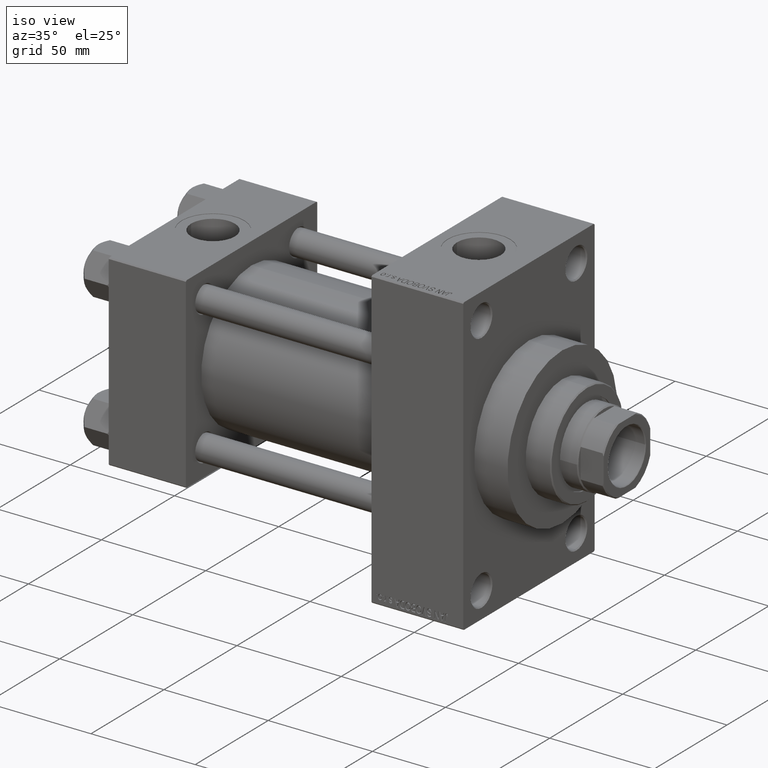
[diagram: clean part render]
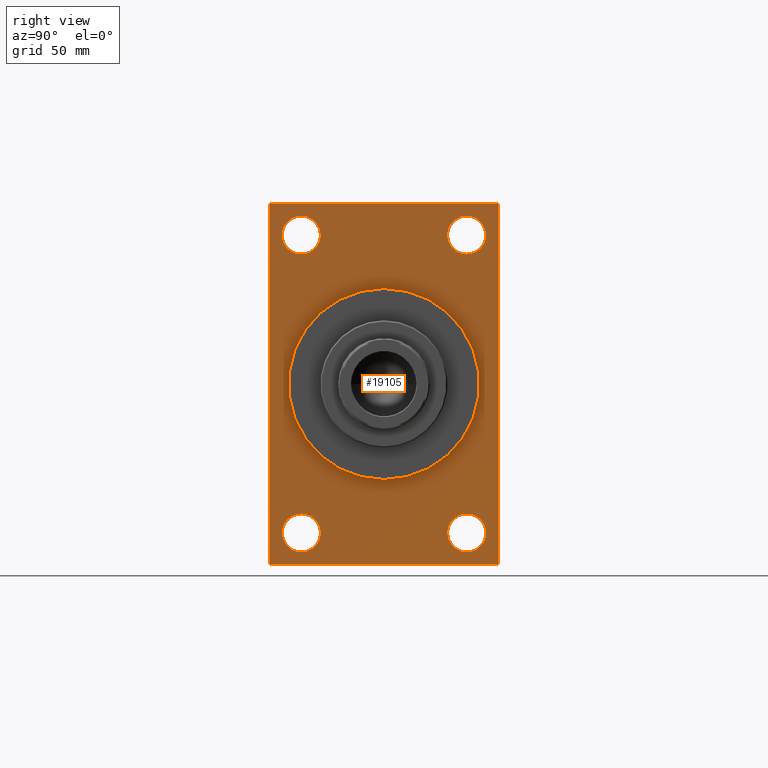
[diagram: tour spotlight — one face highlighted and labeled with its STEP entity id]
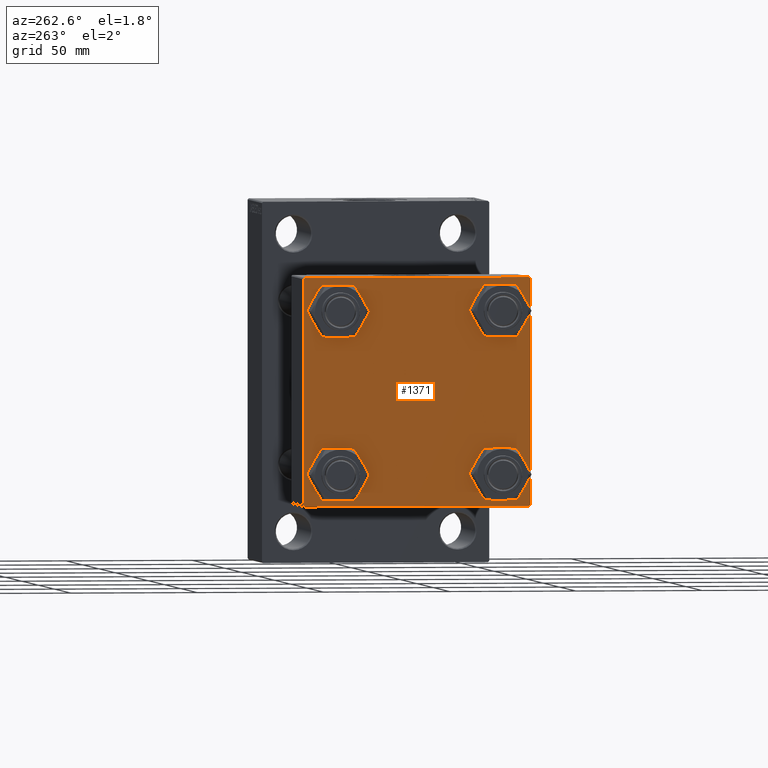
[diagram: tour spotlight — one face highlighted and labeled with its STEP entity id]
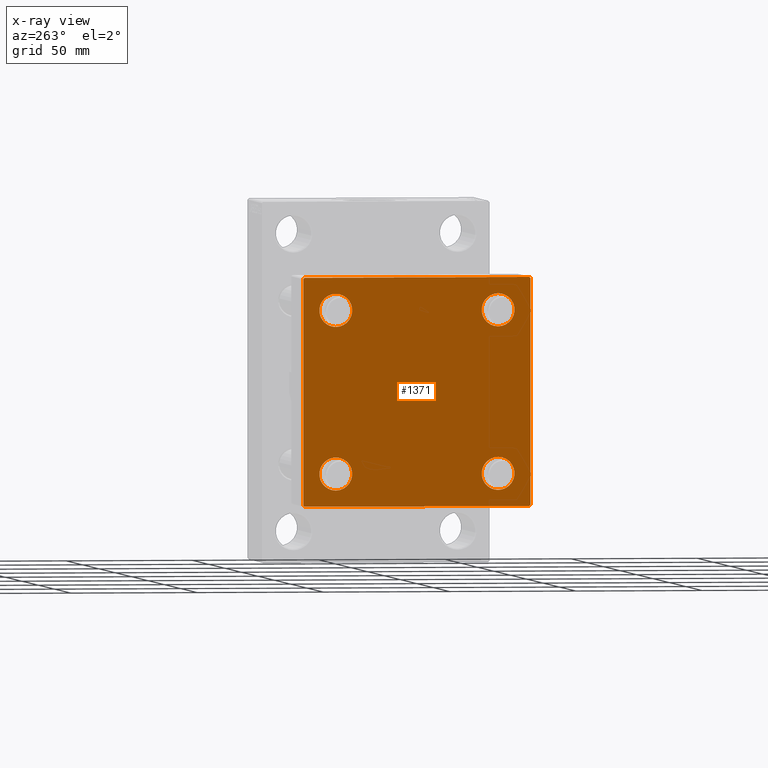
[diagram: x-ray of the same camera — body ghosted, this tour face saturated]
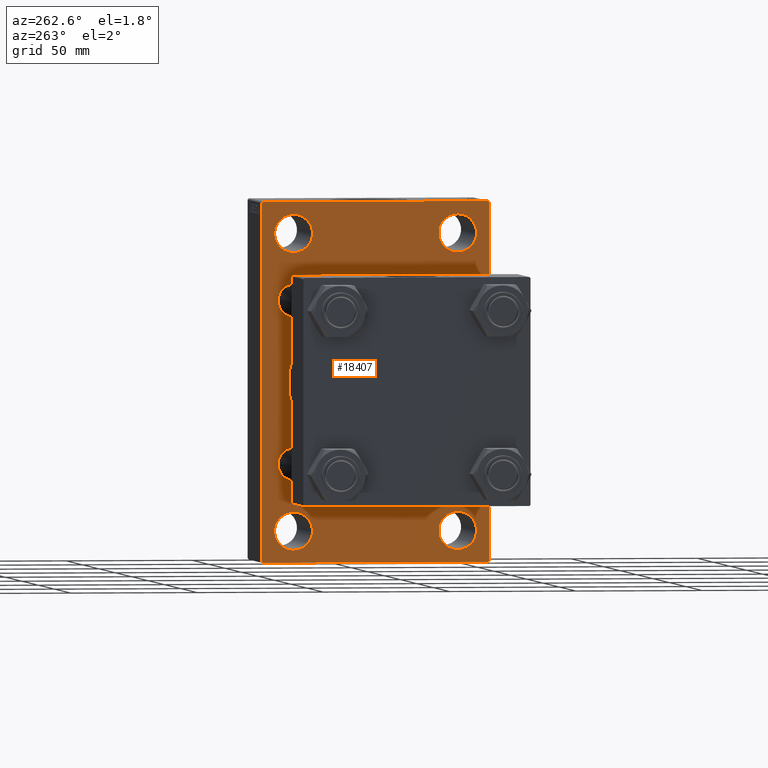
[diagram: tour spotlight — one face highlighted and labeled with its STEP entity id]
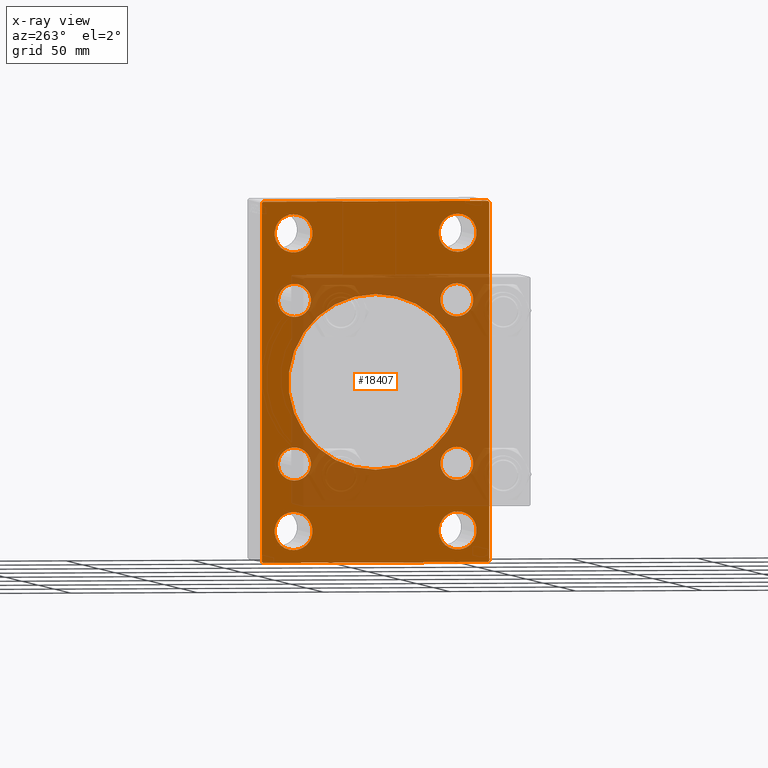
[diagram: x-ray of the same camera — body ghosted, this tour face saturated]
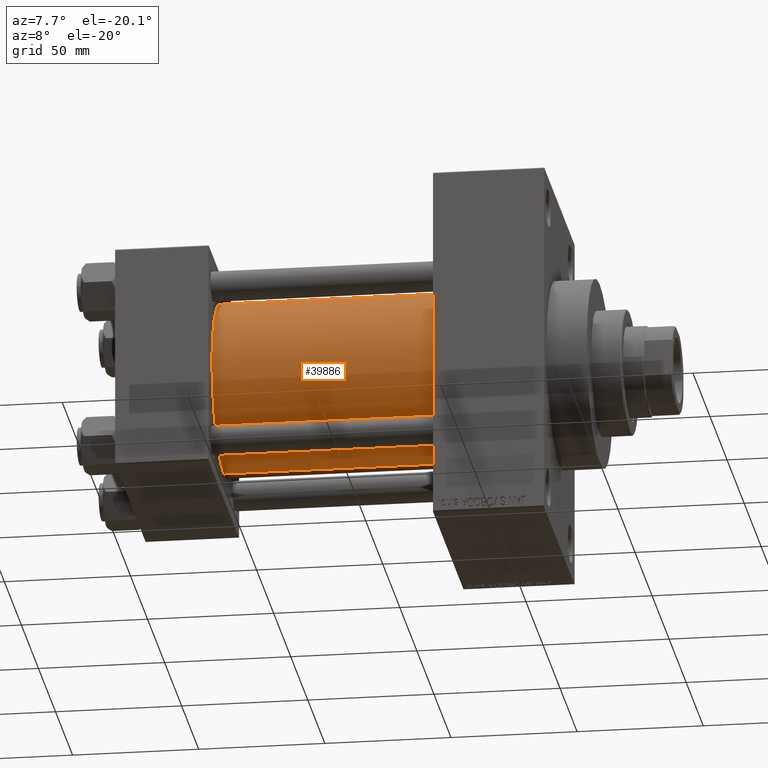
[diagram: tour spotlight — one face highlighted and labeled with its STEP entity id]
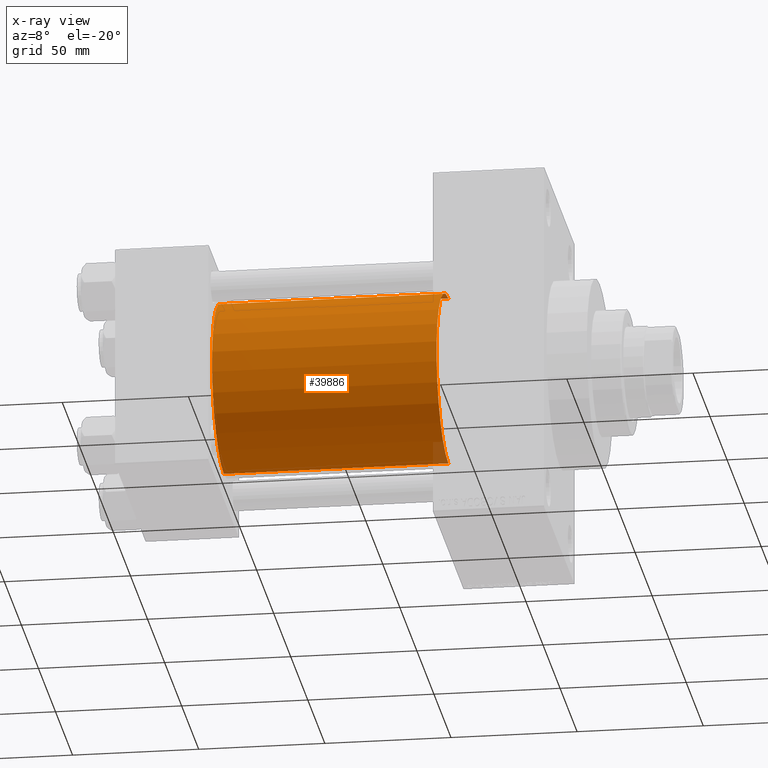
[diagram: x-ray of the same camera — body ghosted, this tour face saturated]
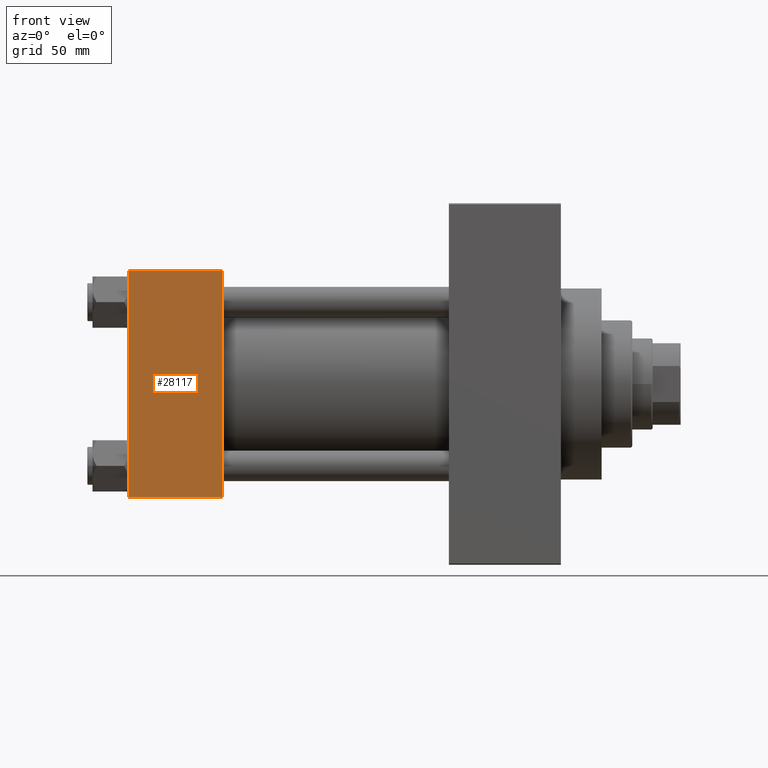
[diagram: tour spotlight — one face highlighted and labeled with its STEP entity id]
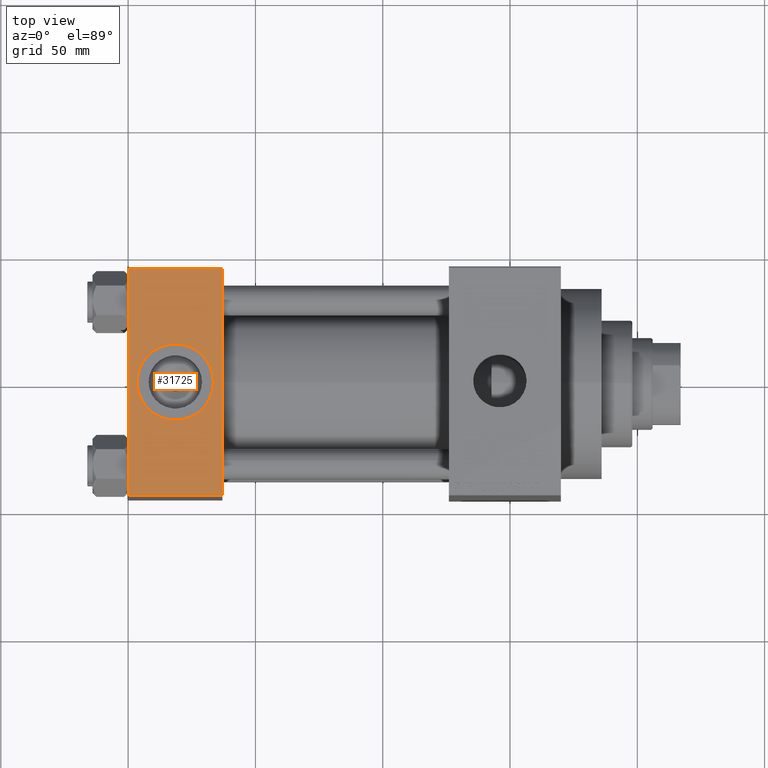
[diagram: tour spotlight — one face highlighted and labeled with its STEP entity id]
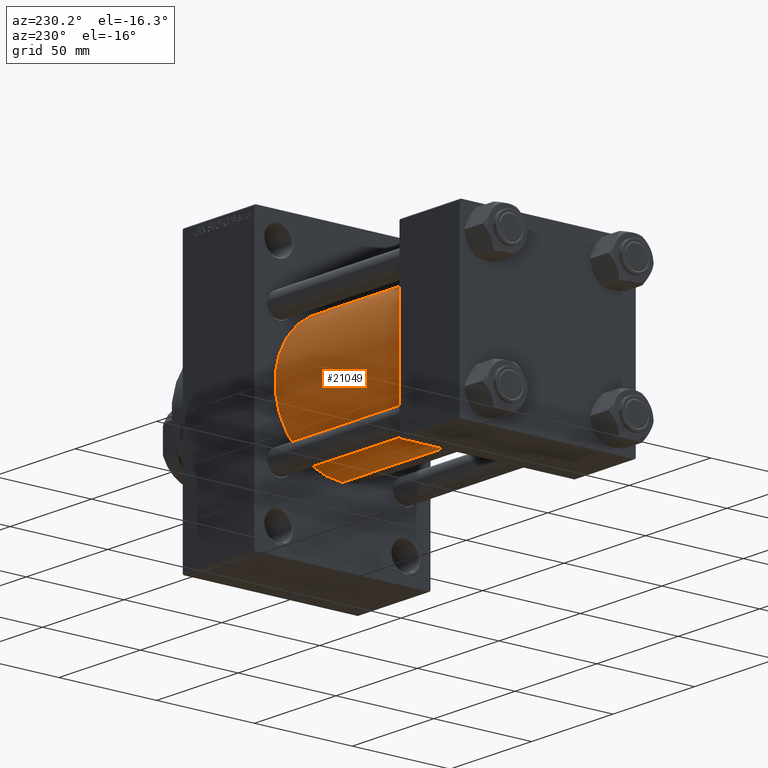
[diagram: tour spotlight — one face highlighted and labeled with its STEP entity id]
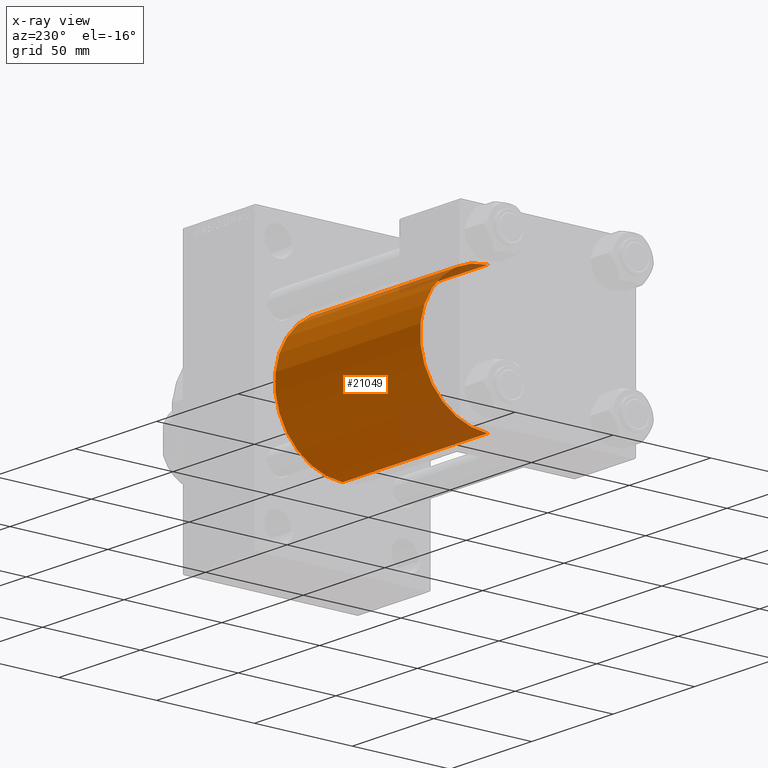
[diagram: x-ray of the same camera — body ghosted, this tour face saturated]
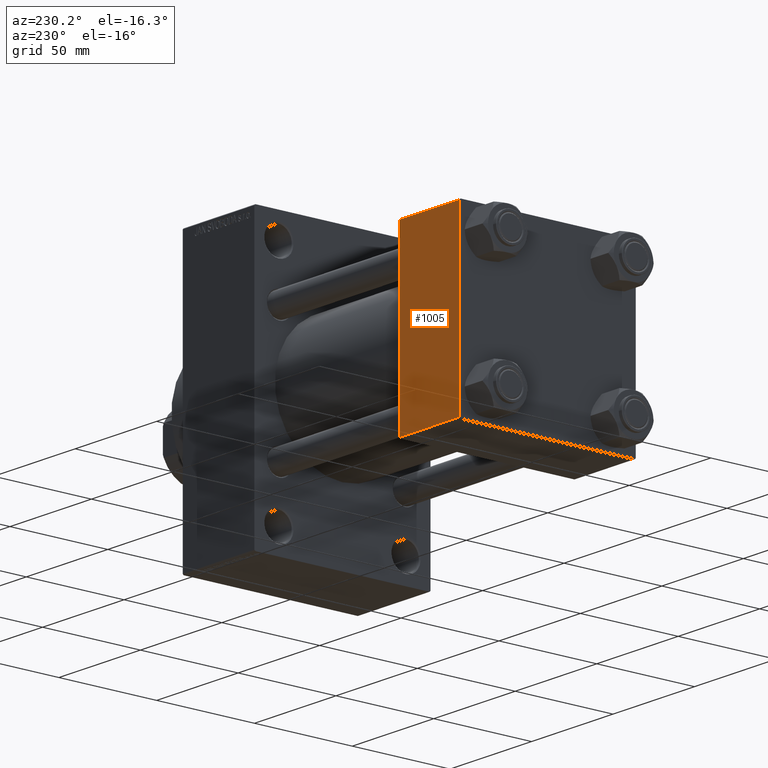
[diagram: tour spotlight — one face highlighted and labeled with its STEP entity id]
A machine part: a face-by-face anatomy tour. The part has 1103 B-rep faces; the first image is the clean iso view, then the 8 largest visible faces are spotlighted one at a time (largest first), each with its STEP entity span.

Face 1 — right view, entity #19105. In plain terms, the highlighted planar face has unit normal (-1, 0, 0).
Definition (entity closure, byte-faithful):
#126 = LINE ( 'NONE', #25207, #31448 ) ;
#303 = VERTEX_POINT ( 'NONE', #4879 ) ;
#905 = EDGE_CURVE ( 'NONE', #6899, #19111, #31951, .T. ) ;
#1536 = DIRECTION ( 'NONE',  ( 0.000000000000000000, 0.7071067811865574537, -0.7071067811865376918 ) ) ;
#1559 = EDGE_CURVE ( 'NONE', #18721, #45373, #23672, .T. ) ;
#1606 = ORIENTED_EDGE ( 'NONE', *, *, #44633, .T. ) ;
#1635 = CARTESIAN_POINT ( 'NONE',  ( 169.9999999999999716, 32.50000000000000711, -58.50000000000000000 ) ) ;
#1670 = VERTEX_POINT ( 'NONE', #16752 ) ;
#1711 = CARTESIAN_POINT ( 'NONE',  ( 169.9999999999999716, -32.50000000000000000, -50.99999999999995737 ) ) ;
#1829 = CIRCLE ( 'NONE', #24711, 37.50000000000000711 ) ;
#1911 = LINE ( 'NONE', #24341, #8340 ) ;
#2215 = DIRECTION ( 'NONE',  ( -0.000000000000000000, 0.000000000000000000, 1.000000000000000000 ) ) ;
#2464 = FACE_BOUND ( 'NONE', #16463, .T. ) ;
#2691 = CARTESIAN_POINT ( 'NONE',  ( 169.9999999999999716, -32.50000000000000000, -66.00000000000001421 ) ) ;
#2987 = AXIS2_PLACEMENT_3D ( 'NONE', #34105, #27207, #15967 ) ;
#3003 = DIRECTION ( 'NONE',  ( 1.000000000000000000, 0.000000000000000000, 0.000000000000000000 ) ) ;
#3280 = VERTEX_POINT ( 'NONE', #31101 ) ;
#3656 = DIRECTION ( 'NONE',  ( 0.000000000000000000, -1.000000000000000000, -1.541976423090495633E-16 ) ) ;
#3835 = CARTESIAN_POINT ( 'NONE',  ( 169.9999999999999716, -44.49999999999992184, 70.99999999999998579 ) ) ;
#4495 = ORIENTED_EDGE ( 'NONE', *, *, #905, .T. ) ;
#4879 = CARTESIAN_POINT ( 'NONE',  ( 169.9999999999999716, 45.00000000000001421, -70.49999999999997158 ) ) ;
#5956 = AXIS2_PLACEMENT_3D ( 'NONE', #32393, #20950, #28815 ) ;
#6706 = CIRCLE ( 'NONE', #5956, 7.500000000000020428 ) ;
#6753 = DIRECTION ( 'NONE',  ( -1.000000000000000000, 0.000000000000000000, -0.000000000000000000 ) ) ;
#6899 = VERTEX_POINT ( 'NONE', #29597 ) ;
#7168 = CARTESIAN_POINT ( 'NONE',  ( 169.9999999999999716, 44.50000000000001421, -70.99999999999998579 ) ) ;
#8340 = VECTOR ( 'NONE', #23629, 1000.000000000000114 ) ;
#8413 = DIRECTION ( 'NONE',  ( 0.000000000000000000, 0.000000000000000000, 1.000000000000000000 ) ) ;
#8540 = CIRCLE ( 'NONE', #25349, 7.500000000000034639 ) ;
#9707 = EDGE_LOOP ( 'NONE', ( #35605, #32080 ) ) ;
#9817 = CARTESIAN_POINT ( 'NONE',  ( 169.9999999999999716, 44.50000000000002132, 71.00000000000000000 ) ) ;
#9930 = CARTESIAN_POINT ( 'NONE',  ( 169.9999999999999716, -32.50000000000000000, 58.50000000000000711 ) ) ;
#10110 = CARTESIAN_POINT ( 'NONE',  ( 169.9999999999999716, 0.000000000000000000, 0.000000000000000000 ) ) ;
#10195 = EDGE_CURVE ( 'NONE', #32495, #20672, #31169, .T. ) ;
#10220 = DIRECTION ( 'NONE',  ( -1.000000000000000000, 0.000000000000000000, -0.000000000000000000 ) ) ;
#10445 = CARTESIAN_POINT ( 'NONE',  ( 169.9999999999999716, 44.50000000000002132, 71.00000000000000000 ) ) ;
#10601 = AXIS2_PLACEMENT_3D ( 'NONE', #44114, #25983, #22402 ) ;
#10828 = DIRECTION ( 'NONE',  ( 0.000000000000000000, 0.000000000000000000, 1.000000000000000000 ) ) ;
#12341 = CARTESIAN_POINT ( 'NONE',  ( 169.9999999999999716, 4.592425496802575156E-15, -37.50000000000000711 ) ) ;
#13217 = CARTESIAN_POINT ( 'NONE',  ( 169.9999999999999716, -32.50000000000000000, 50.99999999999999289 ) ) ;
#13323 = ORIENTED_EDGE ( 'NONE', *, *, #36666, .T. ) ;
#13558 = DIRECTION ( 'NONE',  ( 0.000000000000000000, 0.000000000000000000, 1.000000000000000000 ) ) ;
#13930 = ORIENTED_EDGE ( 'NONE', *, *, #39283, .T. ) ;
#14369 = ORIENTED_EDGE ( 'NONE', *, *, #44722, .F. ) ;
#14616 = AXIS2_PLACEMENT_3D ( 'NONE', #9930, #20423, #17798 ) ;
#15168 = VECTOR ( 'NONE', #3656, 1000.000000000000000 ) ;
#15967 = DIRECTION ( 'NONE',  ( 0.000000000000000000, 0.000000000000000000, 1.000000000000000000 ) ) ;
#16217 = CIRCLE ( 'NONE', #38337, 7.500000000000034639 ) ;
#16463 = EDGE_LOOP ( 'NONE', ( #37931, #39090 ) ) ;
#16482 = ORIENTED_EDGE ( 'NONE', *, *, #33131, .T. ) ;
#16637 = CARTESIAN_POINT ( 'NONE',  ( 169.9999999999999716, 0.000000000000000000, 0.000000000000000000 ) ) ;
#16752 = CARTESIAN_POINT ( 'NONE',  ( 169.9999999999999716, 32.50000000000000711, -50.99999999999996447 ) ) ;
#16865 = VERTEX_POINT ( 'NONE', #18259 ) ;
#17032 = FACE_BOUND ( 'NONE', #27180, .T. ) ;
#17223 = EDGE_CURVE ( 'NONE', #20672, #32495, #46653, .T. ) ;
#17243 = VERTEX_POINT ( 'NONE', #32309 ) ;
#17291 = LINE ( 'NONE', #24927, #15168 ) ;
#17503 = EDGE_LOOP ( 'NONE', ( #1606, #13930, #46648, #26692, #41334, #37657, #18661, #13323 ) ) ;
#17777 = EDGE_CURVE ( 'NONE', #42983, #303, #126, .T. ) ;
#17798 = DIRECTION ( 'NONE',  ( 0.000000000000000000, 0.000000000000000000, 1.000000000000000000 ) ) ;
#17888 = VECTOR ( 'NONE', #24698, 1000.000000000000000 ) ;
#17982 = CARTESIAN_POINT ( 'NONE',  ( 169.9999999999999716, -32.50000000000000000, -58.49999999999999289 ) ) ;
#18259 = CARTESIAN_POINT ( 'NONE',  ( 169.9999999999999716, 32.50000000000000711, 66.00000000000002842 ) ) ;
#18661 = ORIENTED_EDGE ( 'NONE', *, *, #1559, .T. ) ;
#18690 = EDGE_CURVE ( 'NONE', #29862, #1670, #16217, .T. ) ;
#18721 = VERTEX_POINT ( 'NONE', #10445 ) ;
#19105 = ADVANCED_FACE ( 'NONE', ( #31813, #35166, #2464, #17032, #27295, #46363 ), #42096, .F. ) ;
#19111 = VERTEX_POINT ( 'NONE', #13217 ) ;
#19161 = CARTESIAN_POINT ( 'NONE',  ( 169.9999999999999716, 32.50000000000000711, 58.50000000000000711 ) ) ;
#19574 = EDGE_CURVE ( 'NONE', #19111, #6899, #22247, .T. ) ;
#20024 = DIRECTION ( 'NONE',  ( 0.000000000000000000, 0.000000000000000000, 1.000000000000000000 ) ) ;
#20423 = DIRECTION ( 'NONE',  ( -1.000000000000000000, 0.000000000000000000, -0.000000000000000000 ) ) ;
#20672 = VERTEX_POINT ( 'NONE', #1711 ) ;
#20950 = DIRECTION ( 'NONE',  ( -1.000000000000000000, 0.000000000000000000, -0.000000000000000000 ) ) ;
#21308 = EDGE_CURVE ( 'NONE', #1670, #29862, #8540, .T. ) ;
#22170 = EDGE_CURVE ( 'NONE', #3280, #18721, #24140, .T. ) ;
#22247 = CIRCLE ( 'NONE', #14616, 7.500000000000020428 ) ;
#22402 = DIRECTION ( 'NONE',  ( 0.000000000000000000, 0.000000000000000000, 1.000000000000000000 ) ) ;
#22737 = VERTEX_POINT ( 'NONE', #31180 ) ;
#22996 = CIRCLE ( 'NONE', #38232, 37.50000000000000711 ) ;
#23030 = AXIS2_PLACEMENT_3D ( 'NONE', #17982, #6753, #10828 ) ;
#23282 = CARTESIAN_POINT ( 'NONE',  ( 169.9999999999999716, 32.50000000000000711, 50.99999999999999289 ) ) ;
#23629 = DIRECTION ( 'NONE',  ( -0.000000000000000000, -0.7071067811865425767, -0.7071067811865524577 ) ) ;
#23672 = LINE ( 'NONE', #41589, #31228 ) ;
#23922 = VERTEX_POINT ( 'NONE', #27897 ) ;
#24140 = LINE ( 'NONE', #9817, #39876 ) ;
#24341 = CARTESIAN_POINT ( 'NONE',  ( 169.9999999999999716, -44.99999999999997158, 70.49999999999995737 ) ) ;
#24413 = ORIENTED_EDGE ( 'NONE', *, *, #25195, .F. ) ;
#24698 = DIRECTION ( 'NONE',  ( 0.000000000000000000, -4.886545002751570165E-17, -1.000000000000000000 ) ) ;
#24711 = AXIS2_PLACEMENT_3D ( 'NONE', #28785, #3003, #27851 ) ;
#24927 = CARTESIAN_POINT ( 'NONE',  ( 169.9999999999999716, 45.00000000000001421, -70.99999999999998579 ) ) ;
#25195 = EDGE_CURVE ( 'NONE', #23922, #43323, #1829, .T. ) ;
#25207 = CARTESIAN_POINT ( 'NONE',  ( 169.9999999999999716, 45.00000000000001421, -70.49999999999997158 ) ) ;
#25349 = AXIS2_PLACEMENT_3D ( 'NONE', #1635, #30990, #20024 ) ;
#25983 = DIRECTION ( 'NONE',  ( -1.000000000000000000, 0.000000000000000000, -0.000000000000000000 ) ) ;
#26343 = EDGE_CURVE ( 'NONE', #3280, #303, #32319, .T. ) ;
#26676 = DIRECTION ( 'NONE',  ( 0.000000000000000000, 0.000000000000000000, -1.000000000000000000 ) ) ;
#26692 = ORIENTED_EDGE ( 'NONE', *, *, #17777, .T. ) ;
#27106 = CARTESIAN_POINT ( 'NONE',  ( 169.9999999999999716, -44.49999999999994316, -71.00000000000000000 ) ) ;
#27180 = EDGE_LOOP ( 'NONE', ( #16482, #46790 ) ) ;
#27207 = DIRECTION ( 'NONE',  ( -1.000000000000000000, 0.000000000000000000, -0.000000000000000000 ) ) ;
#27295 = FACE_BOUND ( 'NONE', #28349, .T. ) ;
#27494 = DIRECTION ( 'NONE',  ( 0.000000000000000000, -0.7071067811865474617, 0.7071067811865474617 ) ) ;
#27851 = DIRECTION ( 'NONE',  ( 0.000000000000000000, 0.000000000000000000, -1.000000000000000000 ) ) ;
#27897 = CARTESIAN_POINT ( 'NONE',  ( 169.9999999999999716, 0.000000000000000000, 37.50000000000000711 ) ) ;
#28349 = EDGE_LOOP ( 'NONE', ( #24413, #14369 ) ) ;
#28785 = CARTESIAN_POINT ( 'NONE',  ( 169.9999999999999716, 0.000000000000000000, 0.000000000000000000 ) ) ;
#28815 = DIRECTION ( 'NONE',  ( 0.000000000000000000, 0.000000000000000000, 1.000000000000000000 ) ) ;
#29112 = CIRCLE ( 'NONE', #44325, 7.500000000000020428 ) ;
#29215 = CARTESIAN_POINT ( 'NONE',  ( 169.9999999999999716, 32.50000000000000711, -66.00000000000002842 ) ) ;
#29597 = CARTESIAN_POINT ( 'NONE',  ( 169.9999999999999716, -32.50000000000000000, 66.00000000000002842 ) ) ;
#29793 = VECTOR ( 'NONE', #1536, 999.9999999999998863 ) ;
#29862 = VERTEX_POINT ( 'NONE', #29215 ) ;
#30031 = CARTESIAN_POINT ( 'NONE',  ( 169.9999999999999716, -44.99999999999997158, 70.99999999999998579 ) ) ;
#30990 = DIRECTION ( 'NONE',  ( -1.000000000000000000, 0.000000000000000000, -0.000000000000000000 ) ) ;
#31101 = CARTESIAN_POINT ( 'NONE',  ( 169.9999999999999716, 45.00000000000002132, 70.50000000000000000 ) ) ;
#31169 = CIRCLE ( 'NONE', #10601, 7.500000000000041744 ) ;
#31180 = CARTESIAN_POINT ( 'NONE',  ( 169.9999999999999716, -44.49999999999991473, -71.00000000000000000 ) ) ;
#31191 = DIRECTION ( 'NONE',  ( 1.000000000000000000, 0.000000000000000000, 0.000000000000000000 ) ) ;
#31228 = VECTOR ( 'NONE', #41110, 1000.000000000000000 ) ;
#31341 = DIRECTION ( 'NONE',  ( -1.000000000000000000, 0.000000000000000000, -0.000000000000000000 ) ) ;
#31448 = VECTOR ( 'NONE', #40484, 999.9999999999998863 ) ;
#31696 = CARTESIAN_POINT ( 'NONE',  ( 169.9999999999999716, 32.50000000000000711, -58.50000000000000000 ) ) ;
#31813 = FACE_BOUND ( 'NONE', #31969, .T. ) ;
#31951 = CIRCLE ( 'NONE', #2987, 7.500000000000020428 ) ;
#31969 = EDGE_LOOP ( 'NONE', ( #39404, #4495 ) ) ;
#32050 = VERTEX_POINT ( 'NONE', #23282 ) ;
#32080 = ORIENTED_EDGE ( 'NONE', *, *, #17223, .T. ) ;
#32140 = DIRECTION ( 'NONE',  ( 0.000000000000000000, 0.000000000000000000, -1.000000000000000000 ) ) ;
#32309 = CARTESIAN_POINT ( 'NONE',  ( 169.9999999999999716, -44.99999999999997158, -70.49999999999998579 ) ) ;
#32319 = LINE ( 'NONE', #42831, #17888 ) ;
#32393 = CARTESIAN_POINT ( 'NONE',  ( 169.9999999999999716, 32.50000000000000711, 58.50000000000000711 ) ) ;
#32495 = VERTEX_POINT ( 'NONE', #2691 ) ;
#33131 = EDGE_CURVE ( 'NONE', #32050, #16865, #6706, .T. ) ;
#34105 = CARTESIAN_POINT ( 'NONE',  ( 169.9999999999999716, -32.50000000000000000, 58.50000000000000711 ) ) ;
#35166 = FACE_BOUND ( 'NONE', #9707, .T. ) ;
#35192 = EDGE_CURVE ( 'NONE', #42983, #22737, #17291, .T. ) ;
#35605 = ORIENTED_EDGE ( 'NONE', *, *, #10195, .T. ) ;
#36666 = EDGE_CURVE ( 'NONE', #45373, #41788, #1911, .T. ) ;
#37413 = LINE ( 'NONE', #30031, #37436 ) ;
#37436 = VECTOR ( 'NONE', #26676, 1000.000000000000000 ) ;
#37657 = ORIENTED_EDGE ( 'NONE', *, *, #22170, .T. ) ;
#37931 = ORIENTED_EDGE ( 'NONE', *, *, #18690, .T. ) ;
#38232 = AXIS2_PLACEMENT_3D ( 'NONE', #16637, #31191, #32140 ) ;
#38337 = AXIS2_PLACEMENT_3D ( 'NONE', #31696, #10220, #13558 ) ;
#38989 = CARTESIAN_POINT ( 'NONE',  ( 169.9999999999999716, -44.99999999999997158, 70.49999999999995737 ) ) ;
#39090 = ORIENTED_EDGE ( 'NONE', *, *, #21308, .T. ) ;
#39283 = EDGE_CURVE ( 'NONE', #17243, #22737, #45464, .T. ) ;
#39404 = ORIENTED_EDGE ( 'NONE', *, *, #19574, .T. ) ;
#39876 = VECTOR ( 'NONE', #27494, 1000.000000000000114 ) ;
#40484 = DIRECTION ( 'NONE',  ( -0.000000000000000000, 0.7071067811865376918, 0.7071067811865574537 ) ) ;
#41110 = DIRECTION ( 'NONE',  ( 0.000000000000000000, -1.000000000000000000, -1.541976423090495387E-16 ) ) ;
#41334 = ORIENTED_EDGE ( 'NONE', *, *, #26343, .F. ) ;
#41364 = DIRECTION ( 'NONE',  ( -1.000000000000000000, 0.000000000000000000, -0.000000000000000000 ) ) ;
#41589 = CARTESIAN_POINT ( 'NONE',  ( 169.9999999999999716, 45.00000000000002132, 71.00000000000000000 ) ) ;
#41788 = VERTEX_POINT ( 'NONE', #38989 ) ;
#42049 = AXIS2_PLACEMENT_3D ( 'NONE', #10110, #31341, #2215 ) ;
#42096 = PLANE ( 'NONE',  #42049 ) ;
#42831 = CARTESIAN_POINT ( 'NONE',  ( 169.9999999999999716, 45.00000000000002132, 71.00000000000000000 ) ) ;
#42983 = VERTEX_POINT ( 'NONE', #7168 ) ;
#43323 = VERTEX_POINT ( 'NONE', #12341 ) ;
#44114 = CARTESIAN_POINT ( 'NONE',  ( 169.9999999999999716, -32.50000000000000000, -58.49999999999999289 ) ) ;
#44325 = AXIS2_PLACEMENT_3D ( 'NONE', #19161, #41364, #8413 ) ;
#44633 = EDGE_CURVE ( 'NONE', #41788, #17243, #37413, .T. ) ;
#44722 = EDGE_CURVE ( 'NONE', #43323, #23922, #22996, .T. ) ;
#45233 = EDGE_CURVE ( 'NONE', #16865, #32050, #29112, .T. ) ;
#45373 = VERTEX_POINT ( 'NONE', #3835 ) ;
#45464 = LINE ( 'NONE', #27106, #29793 ) ;
#46363 = FACE_OUTER_BOUND ( 'NONE', #17503, .T. ) ;
#46648 = ORIENTED_EDGE ( 'NONE', *, *, #35192, .F. ) ;
#46653 = CIRCLE ( 'NONE', #23030, 7.500000000000041744 ) ;
#46790 = ORIENTED_EDGE ( 'NONE', *, *, #45233, .T. ) ;

Face 2 — auxiliary view, entity #1371. An x-ray twin of the same camera follows (body ghosted, this face saturated) — the face is partly hidden behind the body. In plain terms, the highlighted planar face has unit normal (-1, 0, 0).
Definition (entity closure, byte-faithful):
#591 = DIRECTION ( 'NONE',  ( 1.000000000000000000, -0.000000000000000000, 0.000000000000000000 ) ) ;
#765 = FACE_BOUND ( 'NONE', #19813, .T. ) ;
#851 = VERTEX_POINT ( 'NONE', #22442 ) ;
#1371 = ADVANCED_FACE ( 'NONE', ( #36365, #28967, #29671, #765, #32765 ), #7240, .T. ) ;
#1478 = ORIENTED_EDGE ( 'NONE', *, *, #7666, .T. ) ;
#1924 = EDGE_CURVE ( 'NONE', #19772, #40268, #35278, .T. ) ;
#2082 = CARTESIAN_POINT ( 'NONE',  ( 0.000000000000000000, 32.14999999999999147, 25.65000000000002700 ) ) ;
#2303 = EDGE_CURVE ( 'NONE', #42509, #37448, #26701, .T. ) ;
#2572 = CARTESIAN_POINT ( 'NONE',  ( 0.000000000000000000, 44.99999999999998579, 45.00000000000001421 ) ) ;
#3625 = CARTESIAN_POINT ( 'NONE',  ( 0.000000000000000000, -45.00000000000000711, 44.49999999999997158 ) ) ;
#3650 = DIRECTION ( 'NONE',  ( -1.000000000000000000, 0.000000000000000000, -0.000000000000000000 ) ) ;
#3675 = VERTEX_POINT ( 'NONE', #40105 ) ;
#3918 = DIRECTION ( 'NONE',  ( 1.000000000000000000, -0.000000000000000000, 0.000000000000000000 ) ) ;
#4135 = DIRECTION ( 'NONE',  ( -0.000000000000000000, 0.000000000000000000, 1.000000000000000000 ) ) ;
#4552 = DIRECTION ( 'NONE',  ( 1.000000000000000000, -0.000000000000000000, 0.000000000000000000 ) ) ;
#5040 = CARTESIAN_POINT ( 'NONE',  ( -0.000000000000000000, -44.75000000000029843, 44.74999999999967315 ) ) ;
#5562 = ORIENTED_EDGE ( 'NONE', *, *, #18236, .T. ) ;
#6135 = DIRECTION ( 'NONE',  ( 0.000000000000000000, -1.000000000000000000, -1.541976423090495387E-16 ) ) ;
#6761 = CARTESIAN_POINT ( 'NONE',  ( 0.000000000000000000, -32.14999999999997726, 32.15000000000001279 ) ) ;
#6777 = VECTOR ( 'NONE', #16857, 1000.000000000000000 ) ;
#6878 = VECTOR ( 'NONE', #37793, 1000.000000000000114 ) ;
#7240 = PLANE ( 'NONE',  #12939 ) ;
#7454 = AXIS2_PLACEMENT_3D ( 'NONE', #6761, #25624, #30599 ) ;
#7666 = EDGE_CURVE ( 'NONE', #20897, #40268, #12683, .T. ) ;
#8238 = AXIS2_PLACEMENT_3D ( 'NONE', #45128, #4552, #23177 ) ;
#8582 = AXIS2_PLACEMENT_3D ( 'NONE', #29497, #591, #18268 ) ;
#9788 = CIRCLE ( 'NONE', #21201, 6.499999999999977796 ) ;
#9913 = VECTOR ( 'NONE', #6135, 1000.000000000000000 ) ;
#10146 = CARTESIAN_POINT ( 'NONE',  ( 0.000000000000000000, -32.14999999999997726, 38.65000000000003411 ) ) ;
#10274 = CARTESIAN_POINT ( 'NONE',  ( 0.000000000000000000, 32.14999999999999147, -38.64999999999998437 ) ) ;
#10681 = VERTEX_POINT ( 'NONE', #10146 ) ;
#11092 = EDGE_CURVE ( 'NONE', #37448, #42509, #35783, .T. ) ;
#11720 = ORIENTED_EDGE ( 'NONE', *, *, #41746, .F. ) ;
#12321 = EDGE_CURVE ( 'NONE', #39337, #21309, #22806, .T. ) ;
#12683 = LINE ( 'NONE', #5040, #19233 ) ;
#12712 = VERTEX_POINT ( 'NONE', #10274 ) ;
#12768 = CARTESIAN_POINT ( 'NONE',  ( 0.000000000000000000, 44.99999999999998579, -44.49999999999995737 ) ) ;
#12939 = AXIS2_PLACEMENT_3D ( 'NONE', #43526, #3650, #4135 ) ;
#13284 = LINE ( 'NONE', #35243, #6777 ) ;
#14150 = CARTESIAN_POINT ( 'NONE',  ( 0.000000000000000000, -45.00000000000000711, 45.00000000000000000 ) ) ;
#14372 = DIRECTION ( 'NONE',  ( 0.000000000000000000, 7.709882115452476934E-17, -1.000000000000000000 ) ) ;
#15194 = AXIS2_PLACEMENT_3D ( 'NONE', #33416, #36535, #44406 ) ;
#16111 = DIRECTION ( 'NONE',  ( 1.000000000000000000, -0.000000000000000000, 0.000000000000000000 ) ) ;
#16179 = VECTOR ( 'NONE', #22732, 1000.000000000000114 ) ;
#16469 = ORIENTED_EDGE ( 'NONE', *, *, #32578, .T. ) ;
#16857 = DIRECTION ( 'NONE',  ( 0.000000000000000000, -1.000000000000000000, -1.541976423090495633E-16 ) ) ;
#17034 = LINE ( 'NONE', #14150, #27467 ) ;
#17873 = EDGE_CURVE ( 'NONE', #45380, #36868, #33725, .T. ) ;
#18236 = EDGE_CURVE ( 'NONE', #19772, #39947, #44462, .T. ) ;
#18268 = DIRECTION ( 'NONE',  ( 0.000000000000000000, 0.000000000000000000, 1.000000000000000000 ) ) ;
#18402 = CARTESIAN_POINT ( 'NONE',  ( 0.000000000000000000, 32.14999999999999147, 38.64999999999999147 ) ) ;
#18655 = VERTEX_POINT ( 'NONE', #31459 ) ;
#19130 = DIRECTION ( 'NONE',  ( -0.000000000000000000, 0.7071067811865425767, 0.7071067811865524577 ) ) ;
#19233 = VECTOR ( 'NONE', #19130, 1000.000000000000114 ) ;
#19772 = VERTEX_POINT ( 'NONE', #33978 ) ;
#19813 = EDGE_LOOP ( 'NONE', ( #29445, #31853 ) ) ;
#20891 = CIRCLE ( 'NONE', #21672, 6.499999999999977796 ) ;
#20897 = VERTEX_POINT ( 'NONE', #3625 ) ;
#21201 = AXIS2_PLACEMENT_3D ( 'NONE', #25105, #21532, #21769 ) ;
#21309 = VERTEX_POINT ( 'NONE', #38869 ) ;
#21405 = VECTOR ( 'NONE', #23743, 1000.000000000000000 ) ;
#21532 = DIRECTION ( 'NONE',  ( 1.000000000000000000, -0.000000000000000000, 0.000000000000000000 ) ) ;
#21535 = ORIENTED_EDGE ( 'NONE', *, *, #40208, .T. ) ;
#21672 = AXIS2_PLACEMENT_3D ( 'NONE', #32880, #44568, #40765 ) ;
#21769 = DIRECTION ( 'NONE',  ( 0.000000000000000000, 0.000000000000000000, 1.000000000000000000 ) ) ;
#22442 = CARTESIAN_POINT ( 'NONE',  ( 0.000000000000000000, -32.14999999999997726, 25.64999999999999147 ) ) ;
#22732 = DIRECTION ( 'NONE',  ( 0.000000000000000000, 0.7071067811865474617, -0.7071067811865474617 ) ) ;
#22797 = LINE ( 'NONE', #45230, #21405 ) ;
#22806 = LINE ( 'NONE', #36432, #25932 ) ;
#23177 = DIRECTION ( 'NONE',  ( 0.000000000000000000, 0.000000000000000000, 1.000000000000000000 ) ) ;
#23467 = CARTESIAN_POINT ( 'NONE',  ( 0.000000000000000000, -44.74999999999998579, -44.74999999999998579 ) ) ;
#23477 = CARTESIAN_POINT ( 'NONE',  ( 0.000000000000000000, -32.14999999999997726, -38.64999999999999147 ) ) ;
#23504 = DIRECTION ( 'NONE',  ( 0.000000000000000000, 0.000000000000000000, 1.000000000000000000 ) ) ;
#23620 = CARTESIAN_POINT ( 'NONE',  ( 0.000000000000000000, 44.99999999999998579, 44.50000000000001421 ) ) ;
#23743 = DIRECTION ( 'NONE',  ( 0.000000000000000000, 0.000000000000000000, -1.000000000000000000 ) ) ;
#24509 = ORIENTED_EDGE ( 'NONE', *, *, #11092, .T. ) ;
#24957 = ORIENTED_EDGE ( 'NONE', *, *, #12321, .T. ) ;
#24989 = EDGE_CURVE ( 'NONE', #12712, #18655, #20891, .T. ) ;
#25105 = CARTESIAN_POINT ( 'NONE',  ( 0.000000000000000000, 32.14999999999999147, -32.15000000000000568 ) ) ;
#25414 = DIRECTION ( 'NONE',  ( 0.000000000000000000, 0.000000000000000000, 1.000000000000000000 ) ) ;
#25466 = DIRECTION ( 'NONE',  ( -0.000000000000000000, -0.7071067811865474617, -0.7071067811865474617 ) ) ;
#25624 = DIRECTION ( 'NONE',  ( 1.000000000000000000, -0.000000000000000000, 0.000000000000000000 ) ) ;
#25932 = VECTOR ( 'NONE', #25466, 1000.000000000000114 ) ;
#26701 = CIRCLE ( 'NONE', #42718, 6.499999999999977796 ) ;
#26989 = VERTEX_POINT ( 'NONE', #44752 ) ;
#27336 = CARTESIAN_POINT ( 'NONE',  ( 0.000000000000000000, -44.49999999999995737, 45.00000000000000000 ) ) ;
#27467 = VECTOR ( 'NONE', #14372, 1000.000000000000000 ) ;
#28336 = AXIS2_PLACEMENT_3D ( 'NONE', #34007, #16111, #23504 ) ;
#28836 = CIRCLE ( 'NONE', #8238, 6.499999999999977796 ) ;
#28967 = FACE_BOUND ( 'NONE', #34234, .T. ) ;
#29445 = ORIENTED_EDGE ( 'NONE', *, *, #17873, .T. ) ;
#29497 = CARTESIAN_POINT ( 'NONE',  ( 0.000000000000000000, 32.14999999999999147, 32.15000000000000568 ) ) ;
#29671 = FACE_BOUND ( 'NONE', #42424, .T. ) ;
#29817 = CARTESIAN_POINT ( 'NONE',  ( 0.000000000000000000, -32.14999999999997726, -25.65000000000003411 ) ) ;
#29870 = EDGE_CURVE ( 'NONE', #851, #10681, #44057, .T. ) ;
#30599 = DIRECTION ( 'NONE',  ( 0.000000000000000000, 0.000000000000000000, 1.000000000000000000 ) ) ;
#30634 = LINE ( 'NONE', #23467, #6878 ) ;
#31459 = CARTESIAN_POINT ( 'NONE',  ( 0.000000000000000000, 32.14999999999999147, -25.65000000000002700 ) ) ;
#31853 = ORIENTED_EDGE ( 'NONE', *, *, #33441, .T. ) ;
#32578 = EDGE_CURVE ( 'NONE', #18655, #12712, #9788, .T. ) ;
#32733 = ORIENTED_EDGE ( 'NONE', *, *, #41641, .T. ) ;
#32765 = FACE_OUTER_BOUND ( 'NONE', #43462, .T. ) ;
#32880 = CARTESIAN_POINT ( 'NONE',  ( 0.000000000000000000, 32.14999999999999147, -32.15000000000000568 ) ) ;
#33416 = CARTESIAN_POINT ( 'NONE',  ( 0.000000000000000000, -32.14999999999997726, -32.15000000000001279 ) ) ;
#33441 = EDGE_CURVE ( 'NONE', #36868, #45380, #28836, .T. ) ;
#33725 = CIRCLE ( 'NONE', #8582, 6.499999999999977796 ) ;
#33978 = CARTESIAN_POINT ( 'NONE',  ( 0.000000000000000000, 44.49999999999998579, 45.00000000000001421 ) ) ;
#34007 = CARTESIAN_POINT ( 'NONE',  ( 0.000000000000000000, -32.14999999999997726, 32.15000000000001279 ) ) ;
#34234 = EDGE_LOOP ( 'NONE', ( #24509, #43955 ) ) ;
#34876 = ORIENTED_EDGE ( 'NONE', *, *, #1924, .F. ) ;
#34894 = EDGE_CURVE ( 'NONE', #21309, #3675, #13284, .T. ) ;
#35243 = CARTESIAN_POINT ( 'NONE',  ( 0.000000000000000000, 44.99999999999998579, -44.99999999999998579 ) ) ;
#35278 = LINE ( 'NONE', #2572, #9913 ) ;
#35783 = CIRCLE ( 'NONE', #15194, 6.499999999999977796 ) ;
#36160 = CARTESIAN_POINT ( 'NONE',  ( 0.000000000000000000, -32.14999999999997726, -32.15000000000001279 ) ) ;
#36365 = FACE_BOUND ( 'NONE', #44125, .T. ) ;
#36432 = CARTESIAN_POINT ( 'NONE',  ( 0.000000000000000000, 44.74999999999998579, -44.74999999999998579 ) ) ;
#36535 = DIRECTION ( 'NONE',  ( 1.000000000000000000, -0.000000000000000000, 0.000000000000000000 ) ) ;
#36868 = VERTEX_POINT ( 'NONE', #2082 ) ;
#37139 = ORIENTED_EDGE ( 'NONE', *, *, #29870, .T. ) ;
#37448 = VERTEX_POINT ( 'NONE', #29817 ) ;
#37763 = CARTESIAN_POINT ( 'NONE',  ( 0.000000000000000000, 44.74999999999999289, 44.74999999999999289 ) ) ;
#37793 = DIRECTION ( 'NONE',  ( 0.000000000000000000, -0.7071067811865474617, 0.7071067811865474617 ) ) ;
#38862 = ORIENTED_EDGE ( 'NONE', *, *, #39372, .T. ) ;
#38869 = CARTESIAN_POINT ( 'NONE',  ( 0.000000000000000000, 44.49999999999998579, -44.99999999999998579 ) ) ;
#39337 = VERTEX_POINT ( 'NONE', #12768 ) ;
#39372 = EDGE_CURVE ( 'NONE', #39947, #39337, #22797, .T. ) ;
#39947 = VERTEX_POINT ( 'NONE', #23620 ) ;
#40105 = CARTESIAN_POINT ( 'NONE',  ( 0.000000000000000000, -44.49999999999995737, -45.00000000000000000 ) ) ;
#40208 = EDGE_CURVE ( 'NONE', #10681, #851, #46582, .T. ) ;
#40268 = VERTEX_POINT ( 'NONE', #27336 ) ;
#40765 = DIRECTION ( 'NONE',  ( 0.000000000000000000, 0.000000000000000000, 1.000000000000000000 ) ) ;
#41641 = EDGE_CURVE ( 'NONE', #3675, #26989, #30634, .T. ) ;
#41746 = EDGE_CURVE ( 'NONE', #20897, #26989, #17034, .T. ) ;
#42424 = EDGE_LOOP ( 'NONE', ( #16469, #45939 ) ) ;
#42509 = VERTEX_POINT ( 'NONE', #23477 ) ;
#42718 = AXIS2_PLACEMENT_3D ( 'NONE', #36160, #3918, #25414 ) ;
#43462 = EDGE_LOOP ( 'NONE', ( #38862, #24957, #47003, #32733, #11720, #1478, #34876, #5562 ) ) ;
#43526 = CARTESIAN_POINT ( 'NONE',  ( 0.000000000000000000, 0.000000000000000000, 0.000000000000000000 ) ) ;
#43955 = ORIENTED_EDGE ( 'NONE', *, *, #2303, .T. ) ;
#44057 = CIRCLE ( 'NONE', #7454, 6.500000000000019540 ) ;
#44125 = EDGE_LOOP ( 'NONE', ( #21535, #37139 ) ) ;
#44406 = DIRECTION ( 'NONE',  ( 0.000000000000000000, 0.000000000000000000, 1.000000000000000000 ) ) ;
#44462 = LINE ( 'NONE', #37763, #16179 ) ;
#44568 = DIRECTION ( 'NONE',  ( 1.000000000000000000, -0.000000000000000000, 0.000000000000000000 ) ) ;
#44752 = CARTESIAN_POINT ( 'NONE',  ( 0.000000000000000000, -45.00000000000000000, -44.49999999999995737 ) ) ;
#45128 = CARTESIAN_POINT ( 'NONE',  ( 0.000000000000000000, 32.14999999999999147, 32.15000000000000568 ) ) ;
#45230 = CARTESIAN_POINT ( 'NONE',  ( 0.000000000000000000, 44.99999999999998579, 45.00000000000001421 ) ) ;
#45380 = VERTEX_POINT ( 'NONE', #18402 ) ;
#45939 = ORIENTED_EDGE ( 'NONE', *, *, #24989, .T. ) ;
#46582 = CIRCLE ( 'NONE', #28336, 6.500000000000019540 ) ;
#47003 = ORIENTED_EDGE ( 'NONE', *, *, #34894, .T. ) ;

Face 3 — auxiliary view, entity #18407. An x-ray twin of the same camera follows (body ghosted, this face saturated) — the face is partly hidden behind the body. In plain terms, the highlighted planar face has unit normal (-1, 0, 0).
Definition (entity closure, byte-faithful):
#155 = CIRCLE ( 'NONE', #26108, 7.500000000000034639 ) ;
#744 = DIRECTION ( 'NONE',  ( 0.000000000000000000, 0.000000000000000000, 1.000000000000000000 ) ) ;
#774 = VECTOR ( 'NONE', #3542, 1000.000000000000114 ) ;
#792 = CIRCLE ( 'NONE', #27497, 7.500000000000041744 ) ;
#1167 = CARTESIAN_POINT ( 'NONE',  ( 126.0000000000000000, -2.602085213965210642E-15, 0.000000000000000000 ) ) ;
#1472 = CARTESIAN_POINT ( 'NONE',  ( 126.0000000000000000, 32.14999999999999147, -25.64999999999999858 ) ) ;
#1494 = AXIS2_PLACEMENT_3D ( 'NONE', #4313, #26048, #22685 ) ;
#1572 = AXIS2_PLACEMENT_3D ( 'NONE', #21302, #24182, #17033 ) ;
#1851 = LINE ( 'NONE', #45526, #18290 ) ;
#2030 = VERTEX_POINT ( 'NONE', #40742 ) ;
#2773 = ORIENTED_EDGE ( 'NONE', *, *, #23349, .T. ) ;
#2838 = VERTEX_POINT ( 'NONE', #10983 ) ;
#3131 = FACE_BOUND ( 'NONE', #16371, .T. ) ;
#3236 = EDGE_CURVE ( 'NONE', #43997, #13690, #6143, .T. ) ;
#3249 = ORIENTED_EDGE ( 'NONE', *, *, #24654, .T. ) ;
#3370 = EDGE_CURVE ( 'NONE', #19106, #8327, #7680, .T. ) ;
#3542 = DIRECTION ( 'NONE',  ( -0.000000000000000000, 0.7071067811865425767, 0.7071067811865524577 ) ) ;
#3609 = VERTEX_POINT ( 'NONE', #42738 ) ;
#3787 = VERTEX_POINT ( 'NONE', #37680 ) ;
#3883 = CIRCLE ( 'NONE', #22185, 6.500000000000005329 ) ;
#4064 = EDGE_CURVE ( 'NONE', #28573, #46311, #792, .T. ) ;
#4313 = CARTESIAN_POINT ( 'NONE',  ( 126.0000000000000000, -2.602085213965210642E-15, 0.000000000000000000 ) ) ;
#4617 = VERTEX_POINT ( 'NONE', #24177 ) ;
#4653 = ORIENTED_EDGE ( 'NONE', *, *, #4064, .T. ) ;
#4774 = DIRECTION ( 'NONE',  ( 0.000000000000000000, 0.000000000000000000, 1.000000000000000000 ) ) ;
#4797 = AXIS2_PLACEMENT_3D ( 'NONE', #35832, #32253, #28906 ) ;
#5019 = LINE ( 'NONE', #29395, #5309 ) ;
#5168 = DIRECTION ( 'NONE',  ( 0.000000000000000000, 0.000000000000000000, 1.000000000000000000 ) ) ;
#5250 = CARTESIAN_POINT ( 'NONE',  ( 126.0000000000000000, -44.99999999999997158, 70.49999999999995737 ) ) ;
#5309 = VECTOR ( 'NONE', #15059, 1000.000000000000000 ) ;
#5323 = DIRECTION ( 'NONE',  ( 1.000000000000000000, -0.000000000000000000, 0.000000000000000000 ) ) ;
#5953 = CIRCLE ( 'NONE', #28087, 7.500000000000034639 ) ;
#6143 = CIRCLE ( 'NONE', #45773, 6.500000000000005329 ) ;
#6700 = FACE_BOUND ( 'NONE', #21426, .T. ) ;
#6944 = FACE_BOUND ( 'NONE', #39155, .T. ) ;
#6980 = CARTESIAN_POINT ( 'NONE',  ( 126.0000000000000000, -32.50000000000000000, 66.00000000000004263 ) ) ;
#7018 = AXIS2_PLACEMENT_3D ( 'NONE', #31353, #38522, #35180 ) ;
#7064 = LINE ( 'NONE', #40718, #18471 ) ;
#7440 = DIRECTION ( 'NONE',  ( 1.000000000000000000, -0.000000000000000000, 0.000000000000000000 ) ) ;
#7486 = AXIS2_PLACEMENT_3D ( 'NONE', #35553, #20993, #36027 ) ;
#7680 = CIRCLE ( 'NONE', #1572, 6.499999999999999112 ) ;
#8033 = ORIENTED_EDGE ( 'NONE', *, *, #40133, .T. ) ;
#8056 = DIRECTION ( 'NONE',  ( 0.000000000000000000, 0.7071067811865474617, -0.7071067811865474617 ) ) ;
#8118 = DIRECTION ( 'NONE',  ( 1.000000000000000000, -0.000000000000000000, 0.000000000000000000 ) ) ;
#8327 = VERTEX_POINT ( 'NONE', #33758 ) ;
#8380 = CARTESIAN_POINT ( 'NONE',  ( 126.0000000000000000, -32.50000000000000000, 58.50000000000000711 ) ) ;
#8478 = CARTESIAN_POINT ( 'NONE',  ( 126.0000000000000000, -32.14999999999997726, 32.15000000000001279 ) ) ;
#8979 = EDGE_CURVE ( 'NONE', #31909, #23116, #19780, .T. ) ;
#9338 = CARTESIAN_POINT ( 'NONE',  ( 126.0000000000000000, 45.00000000000002132, 70.50000000000000000 ) ) ;
#9487 = CARTESIAN_POINT ( 'NONE',  ( 126.0000000000000000, -32.14999999999997726, 32.15000000000001279 ) ) ;
#9795 = VERTEX_POINT ( 'NONE', #16998 ) ;
#9979 = ORIENTED_EDGE ( 'NONE', *, *, #8979, .T. ) ;
#10679 = CIRCLE ( 'NONE', #1494, 34.50000000000000000 ) ;
#10771 = PLANE ( 'NONE',  #4797 ) ;
#10983 = CARTESIAN_POINT ( 'NONE',  ( 126.0000000000000000, 44.50000000000002132, 71.00000000000000000 ) ) ;
#10990 = ORIENTED_EDGE ( 'NONE', *, *, #18017, .T. ) ;
#11553 = DIRECTION ( 'NONE',  ( 1.000000000000000000, -0.000000000000000000, 0.000000000000000000 ) ) ;
#11593 = CIRCLE ( 'NONE', #7018, 7.500000000000034639 ) ;
#11650 = LINE ( 'NONE', #29320, #41910 ) ;
#11716 = EDGE_LOOP ( 'NONE', ( #18270, #44013 ) ) ;
#12155 = EDGE_CURVE ( 'NONE', #28694, #31909, #1851, .T. ) ;
#12211 = EDGE_CURVE ( 'NONE', #8327, #19106, #44225, .T. ) ;
#12259 = VERTEX_POINT ( 'NONE', #44066 ) ;
#12667 = ORIENTED_EDGE ( 'NONE', *, *, #20951, .T. ) ;
#12782 = EDGE_LOOP ( 'NONE', ( #39694, #45605 ) ) ;
#12992 = CARTESIAN_POINT ( 'NONE',  ( 126.0000000000000000, -44.49999999999992184, 70.99999999999998579 ) ) ;
#13095 = EDGE_LOOP ( 'NONE', ( #22657, #13979 ) ) ;
#13690 = VERTEX_POINT ( 'NONE', #1472 ) ;
#13916 = AXIS2_PLACEMENT_3D ( 'NONE', #46166, #22277, #32538 ) ;
#13979 = ORIENTED_EDGE ( 'NONE', *, *, #12211, .T. ) ;
#14638 = CARTESIAN_POINT ( 'NONE',  ( 126.0000000000000000, 32.50000000000000711, -50.99999999999996447 ) ) ;
#14814 = EDGE_CURVE ( 'NONE', #39866, #4617, #21436, .T. ) ;
#15059 = DIRECTION ( 'NONE',  ( 0.000000000000000000, -1.000000000000000000, -1.541976423090495387E-16 ) ) ;
#15200 = CARTESIAN_POINT ( 'NONE',  ( 126.0000000000000000, -32.50000000000000000, -58.49999999999999289 ) ) ;
#15288 = CARTESIAN_POINT ( 'NONE',  ( 126.0000000000000000, -32.14999999999997726, -38.65000000000001990 ) ) ;
#16224 = CARTESIAN_POINT ( 'NONE',  ( 126.0000000000000000, 44.50000000000001421, -70.99999999999998579 ) ) ;
#16371 = EDGE_LOOP ( 'NONE', ( #44817, #10990 ) ) ;
#16875 = EDGE_LOOP ( 'NONE', ( #2773, #43629 ) ) ;
#16998 = CARTESIAN_POINT ( 'NONE',  ( 126.0000000000000000, -32.50000000000000000, 50.99999999999997868 ) ) ;
#17033 = DIRECTION ( 'NONE',  ( 0.000000000000000000, 0.000000000000000000, 1.000000000000000000 ) ) ;
#17687 = CIRCLE ( 'NONE', #31415, 7.500000000000034639 ) ;
#17697 = FACE_BOUND ( 'NONE', #16875, .T. ) ;
#17785 = EDGE_CURVE ( 'NONE', #21076, #12259, #7064, .T. ) ;
#18017 = EDGE_CURVE ( 'NONE', #38024, #3787, #22289, .T. ) ;
#18270 = ORIENTED_EDGE ( 'NONE', *, *, #24119, .T. ) ;
#18290 = VECTOR ( 'NONE', #28106, 1000.000000000000000 ) ;
#18338 = CARTESIAN_POINT ( 'NONE',  ( 126.0000000000000000, 1.622946243093158675E-15, -34.50000000000000000 ) ) ;
#18407 = ADVANCED_FACE ( 'NONE', ( #21749, #6700, #28681, #3131, #39421, #25331, #17697, #21272, #6944, #25086 ), #10771, .T. ) ;
#18433 = DIRECTION ( 'NONE',  ( 0.000000000000000000, 0.000000000000000000, 1.000000000000000000 ) ) ;
#18471 = VECTOR ( 'NONE', #21636, 999.9999999999998863 ) ;
#18536 = AXIS2_PLACEMENT_3D ( 'NONE', #30247, #45035, #5168 ) ;
#18547 = ORIENTED_EDGE ( 'NONE', *, *, #38661, .T. ) ;
#18569 = CIRCLE ( 'NONE', #40691, 6.500000000000005329 ) ;
#18665 = CARTESIAN_POINT ( 'NONE',  ( 126.0000000000000000, -32.14999999999997726, 38.65000000000002700 ) ) ;
#19106 = VERTEX_POINT ( 'NONE', #41850 ) ;
#19440 = CARTESIAN_POINT ( 'NONE',  ( 126.0000000000000000, 32.14999999999999147, -38.65000000000001279 ) ) ;
#19780 = LINE ( 'NONE', #34102, #34979 ) ;
#19917 = EDGE_CURVE ( 'NONE', #3787, #38024, #11593, .T. ) ;
#20101 = CIRCLE ( 'NONE', #45240, 34.50000000000000000 ) ;
#20272 = CARTESIAN_POINT ( 'NONE',  ( 126.0000000000000000, 32.50000000000000711, -58.50000000000000000 ) ) ;
#20691 = ORIENTED_EDGE ( 'NONE', *, *, #42032, .F. ) ;
#20899 = EDGE_CURVE ( 'NONE', #46311, #28573, #45929, .T. ) ;
#20951 = EDGE_CURVE ( 'NONE', #9795, #34490, #155, .T. ) ;
#20987 = LINE ( 'NONE', #25034, #774 ) ;
#20993 = DIRECTION ( 'NONE',  ( 1.000000000000000000, -0.000000000000000000, 0.000000000000000000 ) ) ;
#21076 = VERTEX_POINT ( 'NONE', #38219 ) ;
#21272 = FACE_BOUND ( 'NONE', #11716, .T. ) ;
#21302 = CARTESIAN_POINT ( 'NONE',  ( 126.0000000000000000, 32.14999999999999147, 32.15000000000000568 ) ) ;
#21426 = EDGE_LOOP ( 'NONE', ( #31954, #4653 ) ) ;
#21436 = CIRCLE ( 'NONE', #30555, 6.500000000000005329 ) ;
#21533 = AXIS2_PLACEMENT_3D ( 'NONE', #25599, #7440, #18433 ) ;
#21606 = ORIENTED_EDGE ( 'NONE', *, *, #31397, .T. ) ;
#21636 = DIRECTION ( 'NONE',  ( 0.000000000000000000, -0.7071067811865574537, 0.7071067811865376918 ) ) ;
#21749 = FACE_BOUND ( 'NONE', #27217, .T. ) ;
#21820 = DIRECTION ( 'NONE',  ( 0.000000000000000000, 0.000000000000000000, 1.000000000000000000 ) ) ;
#21974 = CIRCLE ( 'NONE', #7486, 7.500000000000034639 ) ;
#22185 = AXIS2_PLACEMENT_3D ( 'NONE', #8478, #23751, #45699 ) ;
#22277 = DIRECTION ( 'NONE',  ( 1.000000000000000000, -0.000000000000000000, 0.000000000000000000 ) ) ;
#22289 = CIRCLE ( 'NONE', #13916, 7.500000000000034639 ) ;
#22657 = ORIENTED_EDGE ( 'NONE', *, *, #3370, .T. ) ;
#22685 = DIRECTION ( 'NONE',  ( 0.000000000000000000, 0.000000000000000000, -1.000000000000000000 ) ) ;
#22891 = AXIS2_PLACEMENT_3D ( 'NONE', #9487, #30955, #38597 ) ;
#23116 = VERTEX_POINT ( 'NONE', #16224 ) ;
#23349 = EDGE_CURVE ( 'NONE', #13690, #43997, #39127, .T. ) ;
#23751 = DIRECTION ( 'NONE',  ( 1.000000000000000000, -0.000000000000000000, 0.000000000000000000 ) ) ;
#23953 = CARTESIAN_POINT ( 'NONE',  ( 126.0000000000000000, 32.14999999999999147, -32.15000000000000568 ) ) ;
#24029 = CARTESIAN_POINT ( 'NONE',  ( 126.0000000000000000, 32.50000000000000711, 50.99999999999997868 ) ) ;
#24119 = EDGE_CURVE ( 'NONE', #4617, #39866, #18569, .T. ) ;
#24177 = CARTESIAN_POINT ( 'NONE',  ( 126.0000000000000000, -32.14999999999997726, -25.65000000000000568 ) ) ;
#24182 = DIRECTION ( 'NONE',  ( 1.000000000000000000, -0.000000000000000000, 0.000000000000000000 ) ) ;
#24278 = DIRECTION ( 'NONE',  ( 1.000000000000000000, -0.000000000000000000, 0.000000000000000000 ) ) ;
#24647 = ORIENTED_EDGE ( 'NONE', *, *, #17785, .T. ) ;
#24654 = EDGE_CURVE ( 'NONE', #46400, #38793, #20101, .T. ) ;
#24839 = LINE ( 'NONE', #35104, #43474 ) ;
#25034 = CARTESIAN_POINT ( 'NONE',  ( 126.0000000000000000, -57.75000000000028422, 57.74999999999948130 ) ) ;
#25086 = FACE_OUTER_BOUND ( 'NONE', #33982, .T. ) ;
#25331 = FACE_BOUND ( 'NONE', #13095, .T. ) ;
#25544 = VERTEX_POINT ( 'NONE', #12992 ) ;
#25599 = CARTESIAN_POINT ( 'NONE',  ( 126.0000000000000000, -32.50000000000000000, -58.49999999999999289 ) ) ;
#25678 = VERTEX_POINT ( 'NONE', #14638 ) ;
#25797 = ORIENTED_EDGE ( 'NONE', *, *, #36610, .F. ) ;
#26048 = DIRECTION ( 'NONE',  ( 1.000000000000000000, 0.000000000000000000, 0.000000000000000000 ) ) ;
#26108 = AXIS2_PLACEMENT_3D ( 'NONE', #8380, #30112, #744 ) ;
#26277 = CARTESIAN_POINT ( 'NONE',  ( 126.0000000000000000, -32.50000000000000000, 58.50000000000000711 ) ) ;
#27217 = EDGE_LOOP ( 'NONE', ( #38247, #12667 ) ) ;
#27237 = CARTESIAN_POINT ( 'NONE',  ( 126.0000000000000000, -32.50000000000000000, -66.00000000000002842 ) ) ;
#27364 = DIRECTION ( 'NONE',  ( 0.000000000000000000, 0.000000000000000000, 1.000000000000000000 ) ) ;
#27497 = AXIS2_PLACEMENT_3D ( 'NONE', #15200, #29767, #40755 ) ;
#28087 = AXIS2_PLACEMENT_3D ( 'NONE', #26277, #8118, #4774 ) ;
#28106 = DIRECTION ( 'NONE',  ( 0.000000000000000000, -4.886545002751570165E-17, -1.000000000000000000 ) ) ;
#28301 = ORIENTED_EDGE ( 'NONE', *, *, #39007, .T. ) ;
#28573 = VERTEX_POINT ( 'NONE', #27237 ) ;
#28681 = FACE_BOUND ( 'NONE', #12782, .T. ) ;
#28694 = VERTEX_POINT ( 'NONE', #9338 ) ;
#28906 = DIRECTION ( 'NONE',  ( -0.000000000000000000, 0.000000000000000000, 1.000000000000000000 ) ) ;
#29320 = CARTESIAN_POINT ( 'NONE',  ( 126.0000000000000000, 57.75000000000000000, 57.75000000000000000 ) ) ;
#29395 = CARTESIAN_POINT ( 'NONE',  ( 126.0000000000000000, 45.00000000000002132, 71.00000000000000000 ) ) ;
#29767 = DIRECTION ( 'NONE',  ( 1.000000000000000000, -0.000000000000000000, 0.000000000000000000 ) ) ;
#30112 = DIRECTION ( 'NONE',  ( 1.000000000000000000, -0.000000000000000000, 0.000000000000000000 ) ) ;
#30247 = CARTESIAN_POINT ( 'NONE',  ( 126.0000000000000000, 32.14999999999999147, -32.15000000000000568 ) ) ;
#30308 = EDGE_CURVE ( 'NONE', #34490, #9795, #5953, .T. ) ;
#30501 = EDGE_CURVE ( 'NONE', #2030, #25678, #21974, .T. ) ;
#30555 = AXIS2_PLACEMENT_3D ( 'NONE', #44475, #11553, #21820 ) ;
#30955 = DIRECTION ( 'NONE',  ( 1.000000000000000000, -0.000000000000000000, 0.000000000000000000 ) ) ;
#31186 = EDGE_CURVE ( 'NONE', #38793, #46400, #10679, .T. ) ;
#31353 = CARTESIAN_POINT ( 'NONE',  ( 126.0000000000000000, 32.50000000000000711, 58.50000000000000711 ) ) ;
#31397 = EDGE_CURVE ( 'NONE', #23116, #21076, #45821, .T. ) ;
#31415 = AXIS2_PLACEMENT_3D ( 'NONE', #20272, #39360, #38878 ) ;
#31909 = VERTEX_POINT ( 'NONE', #36675 ) ;
#31954 = ORIENTED_EDGE ( 'NONE', *, *, #20899, .T. ) ;
#32253 = DIRECTION ( 'NONE',  ( -1.000000000000000000, 0.000000000000000000, -0.000000000000000000 ) ) ;
#32538 = DIRECTION ( 'NONE',  ( 0.000000000000000000, 0.000000000000000000, 1.000000000000000000 ) ) ;
#32704 = VERTEX_POINT ( 'NONE', #5250 ) ;
#32936 = DIRECTION ( 'NONE',  ( 0.000000000000000000, 0.000000000000000000, -1.000000000000000000 ) ) ;
#33758 = CARTESIAN_POINT ( 'NONE',  ( 126.0000000000000000, 32.14999999999999147, 25.65000000000000213 ) ) ;
#33794 = EDGE_LOOP ( 'NONE', ( #8033, #28301 ) ) ;
#33811 = DIRECTION ( 'NONE',  ( 1.000000000000000000, -0.000000000000000000, 0.000000000000000000 ) ) ;
#33982 = EDGE_LOOP ( 'NONE', ( #21606, #24647, #20691, #18547, #25797, #42547, #37128, #9979 ) ) ;
#34102 = CARTESIAN_POINT ( 'NONE',  ( 126.0000000000000000, 57.75000000000061817, -57.74999999999901235 ) ) ;
#34367 = DIRECTION ( 'NONE',  ( 0.000000000000000000, -1.000000000000000000, -1.541976423090495633E-16 ) ) ;
#34490 = VERTEX_POINT ( 'NONE', #6980 ) ;
#34732 = ORIENTED_EDGE ( 'NONE', *, *, #31186, .T. ) ;
#34979 = VECTOR ( 'NONE', #45090, 999.9999999999998863 ) ;
#35082 = CARTESIAN_POINT ( 'NONE',  ( 126.0000000000000000, 45.00000000000001421, -70.99999999999998579 ) ) ;
#35104 = CARTESIAN_POINT ( 'NONE',  ( 126.0000000000000000, -44.99999999999997158, 70.99999999999998579 ) ) ;
#35180 = DIRECTION ( 'NONE',  ( 0.000000000000000000, 0.000000000000000000, 1.000000000000000000 ) ) ;
#35553 = CARTESIAN_POINT ( 'NONE',  ( 126.0000000000000000, 32.50000000000000711, -58.50000000000000000 ) ) ;
#35580 = DIRECTION ( 'NONE',  ( 0.000000000000000000, 0.000000000000000000, -1.000000000000000000 ) ) ;
#35832 = CARTESIAN_POINT ( 'NONE',  ( 126.0000000000000000, 0.000000000000000000, 0.000000000000000000 ) ) ;
#36027 = DIRECTION ( 'NONE',  ( 0.000000000000000000, 0.000000000000000000, 1.000000000000000000 ) ) ;
#36213 = DIRECTION ( 'NONE',  ( 0.000000000000000000, 0.000000000000000000, 1.000000000000000000 ) ) ;
#36610 = EDGE_CURVE ( 'NONE', #2838, #25544, #5019, .T. ) ;
#36675 = CARTESIAN_POINT ( 'NONE',  ( 126.0000000000000000, 45.00000000000001421, -70.49999999999997158 ) ) ;
#37128 = ORIENTED_EDGE ( 'NONE', *, *, #12155, .T. ) ;
#37175 = VECTOR ( 'NONE', #34367, 1000.000000000000000 ) ;
#37327 = CARTESIAN_POINT ( 'NONE',  ( 126.0000000000000000, -32.50000000000000000, -50.99999999999995026 ) ) ;
#37680 = CARTESIAN_POINT ( 'NONE',  ( 126.0000000000000000, 32.50000000000000711, 66.00000000000004263 ) ) ;
#37756 = EDGE_CURVE ( 'NONE', #2838, #28694, #11650, .T. ) ;
#38024 = VERTEX_POINT ( 'NONE', #24029 ) ;
#38219 = CARTESIAN_POINT ( 'NONE',  ( 126.0000000000000000, -44.49999999999991473, -71.00000000000000000 ) ) ;
#38247 = ORIENTED_EDGE ( 'NONE', *, *, #30308, .T. ) ;
#38522 = DIRECTION ( 'NONE',  ( 1.000000000000000000, -0.000000000000000000, 0.000000000000000000 ) ) ;
#38597 = DIRECTION ( 'NONE',  ( 0.000000000000000000, 0.000000000000000000, 1.000000000000000000 ) ) ;
#38661 = EDGE_CURVE ( 'NONE', #32704, #25544, #20987, .T. ) ;
#38793 = VERTEX_POINT ( 'NONE', #18338 ) ;
#38878 = DIRECTION ( 'NONE',  ( 0.000000000000000000, 0.000000000000000000, 1.000000000000000000 ) ) ;
#39007 = EDGE_CURVE ( 'NONE', #3609, #41896, #46547, .T. ) ;
#39127 = CIRCLE ( 'NONE', #18536, 6.500000000000005329 ) ;
#39155 = EDGE_LOOP ( 'NONE', ( #3249, #34732 ) ) ;
#39327 = CARTESIAN_POINT ( 'NONE',  ( 126.0000000000000000, 32.14999999999999147, 32.15000000000000568 ) ) ;
#39360 = DIRECTION ( 'NONE',  ( 1.000000000000000000, -0.000000000000000000, 0.000000000000000000 ) ) ;
#39421 = FACE_BOUND ( 'NONE', #33794, .T. ) ;
#39667 = AXIS2_PLACEMENT_3D ( 'NONE', #39327, #24278, #36213 ) ;
#39694 = ORIENTED_EDGE ( 'NONE', *, *, #46256, .T. ) ;
#39866 = VERTEX_POINT ( 'NONE', #15288 ) ;
#40133 = EDGE_CURVE ( 'NONE', #41896, #3609, #3883, .T. ) ;
#40691 = AXIS2_PLACEMENT_3D ( 'NONE', #41920, #33811, #27364 ) ;
#40718 = CARTESIAN_POINT ( 'NONE',  ( 126.0000000000000000, -57.74999999999934630, -57.75000000000095213 ) ) ;
#40742 = CARTESIAN_POINT ( 'NONE',  ( 126.0000000000000000, 32.50000000000000711, -66.00000000000002842 ) ) ;
#40755 = DIRECTION ( 'NONE',  ( 0.000000000000000000, 0.000000000000000000, 1.000000000000000000 ) ) ;
#41040 = DIRECTION ( 'NONE',  ( 1.000000000000000000, 0.000000000000000000, 0.000000000000000000 ) ) ;
#41142 = DIRECTION ( 'NONE',  ( 0.000000000000000000, 0.000000000000000000, 1.000000000000000000 ) ) ;
#41850 = CARTESIAN_POINT ( 'NONE',  ( 126.0000000000000000, 32.14999999999999147, 38.65000000000001279 ) ) ;
#41896 = VERTEX_POINT ( 'NONE', #18665 ) ;
#41910 = VECTOR ( 'NONE', #8056, 1000.000000000000114 ) ;
#41920 = CARTESIAN_POINT ( 'NONE',  ( 126.0000000000000000, -32.14999999999997726, -32.15000000000001279 ) ) ;
#42032 = EDGE_CURVE ( 'NONE', #32704, #12259, #24839, .T. ) ;
#42109 = CARTESIAN_POINT ( 'NONE',  ( 126.0000000000000000, -2.602085213965210642E-15, 34.50000000000000000 ) ) ;
#42547 = ORIENTED_EDGE ( 'NONE', *, *, #37756, .T. ) ;
#42738 = CARTESIAN_POINT ( 'NONE',  ( 126.0000000000000000, -32.14999999999997726, 25.65000000000000213 ) ) ;
#43474 = VECTOR ( 'NONE', #35580, 1000.000000000000000 ) ;
#43629 = ORIENTED_EDGE ( 'NONE', *, *, #3236, .T. ) ;
#43997 = VERTEX_POINT ( 'NONE', #19440 ) ;
#44013 = ORIENTED_EDGE ( 'NONE', *, *, #14814, .T. ) ;
#44066 = CARTESIAN_POINT ( 'NONE',  ( 126.0000000000000000, -44.99999999999997158, -70.49999999999998579 ) ) ;
#44225 = CIRCLE ( 'NONE', #39667, 6.499999999999999112 ) ;
#44475 = CARTESIAN_POINT ( 'NONE',  ( 126.0000000000000000, -32.14999999999997726, -32.15000000000001279 ) ) ;
#44817 = ORIENTED_EDGE ( 'NONE', *, *, #19917, .T. ) ;
#45035 = DIRECTION ( 'NONE',  ( 1.000000000000000000, -0.000000000000000000, 0.000000000000000000 ) ) ;
#45090 = DIRECTION ( 'NONE',  ( -0.000000000000000000, -0.7071067811865376918, -0.7071067811865574537 ) ) ;
#45240 = AXIS2_PLACEMENT_3D ( 'NONE', #1167, #41040, #32936 ) ;
#45526 = CARTESIAN_POINT ( 'NONE',  ( 126.0000000000000000, 45.00000000000002132, 71.00000000000000000 ) ) ;
#45605 = ORIENTED_EDGE ( 'NONE', *, *, #30501, .T. ) ;
#45699 = DIRECTION ( 'NONE',  ( 0.000000000000000000, 0.000000000000000000, 1.000000000000000000 ) ) ;
#45773 = AXIS2_PLACEMENT_3D ( 'NONE', #23953, #5323, #41142 ) ;
#45821 = LINE ( 'NONE', #35082, #37175 ) ;
#45929 = CIRCLE ( 'NONE', #21533, 7.500000000000041744 ) ;
#46166 = CARTESIAN_POINT ( 'NONE',  ( 126.0000000000000000, 32.50000000000000711, 58.50000000000000711 ) ) ;
#46256 = EDGE_CURVE ( 'NONE', #25678, #2030, #17687, .T. ) ;
#46311 = VERTEX_POINT ( 'NONE', #37327 ) ;
#46400 = VERTEX_POINT ( 'NONE', #42109 ) ;
#46547 = CIRCLE ( 'NONE', #22891, 6.500000000000005329 ) ;

Face 4 — auxiliary view, entity #39886. An x-ray twin of the same camera follows (body ghosted, this face saturated) — the face is partly hidden behind the body. In plain terms, the highlighted cylindrical surface (partial cylindrical patch) has radius 34.5 mm, axis along (-1, -0, -0).
Definition (entity closure, byte-faithful):
#1167 = CARTESIAN_POINT ( 'NONE',  ( 126.0000000000000000, -2.602085213965210642E-15, 0.000000000000000000 ) ) ;
#2356 = EDGE_CURVE ( 'NONE', #11774, #30630, #9149, .T. ) ;
#2734 = EDGE_CURVE ( 'NONE', #46400, #11774, #35574, .T. ) ;
#6008 = ORIENTED_EDGE ( 'NONE', *, *, #2734, .T. ) ;
#6601 = DIRECTION ( 'NONE',  ( -1.000000000000000000, -0.000000000000000000, -0.000000000000000000 ) ) ;
#9065 = CARTESIAN_POINT ( 'NONE',  ( 126.0000000000000000, 1.622946243093158675E-15, -34.50000000000000000 ) ) ;
#9149 = CIRCLE ( 'NONE', #44245, 34.50000000000000000 ) ;
#11774 = VERTEX_POINT ( 'NONE', #12183 ) ;
#12179 = DIRECTION ( 'NONE',  ( -1.000000000000000000, -0.000000000000000000, -0.000000000000000000 ) ) ;
#12183 = CARTESIAN_POINT ( 'NONE',  ( 37.00000000000000711, -2.602085213965210642E-15, 34.50000000000000000 ) ) ;
#13878 = VECTOR ( 'NONE', #6601, 1000.000000000000000 ) ;
#18338 = CARTESIAN_POINT ( 'NONE',  ( 126.0000000000000000, 1.622946243093158675E-15, -34.50000000000000000 ) ) ;
#19340 = CYLINDRICAL_SURFACE ( 'NONE', #36673, 34.50000000000000000 ) ;
#19360 = ORIENTED_EDGE ( 'NONE', *, *, #24654, .F. ) ;
#19956 = ORIENTED_EDGE ( 'NONE', *, *, #2356, .T. ) ;
#20101 = CIRCLE ( 'NONE', #45240, 34.50000000000000000 ) ;
#24654 = EDGE_CURVE ( 'NONE', #46400, #38793, #20101, .T. ) ;
#26227 = CARTESIAN_POINT ( 'NONE',  ( 37.00000000000000711, 1.622946243093158675E-15, -34.50000000000000000 ) ) ;
#26748 = DIRECTION ( 'NONE',  ( 0.000000000000000000, 0.000000000000000000, 1.000000000000000000 ) ) ;
#30549 = FACE_OUTER_BOUND ( 'NONE', #42744, .T. ) ;
#30630 = VERTEX_POINT ( 'NONE', #26227 ) ;
#31981 = CARTESIAN_POINT ( 'NONE',  ( 126.0000000000000000, -2.602085213965210642E-15, 34.50000000000000000 ) ) ;
#32789 = DIRECTION ( 'NONE',  ( 0.000000000000000000, 0.000000000000000000, 1.000000000000000000 ) ) ;
#32936 = DIRECTION ( 'NONE',  ( 0.000000000000000000, 0.000000000000000000, -1.000000000000000000 ) ) ;
#35574 = LINE ( 'NONE', #31981, #44980 ) ;
#36673 = AXIS2_PLACEMENT_3D ( 'NONE', #44861, #12179, #26748 ) ;
#38197 = LINE ( 'NONE', #9065, #13878 ) ;
#38793 = VERTEX_POINT ( 'NONE', #18338 ) ;
#39886 = ADVANCED_FACE ( 'NONE', ( #30549 ), #19340, .T. ) ;
#40370 = ORIENTED_EDGE ( 'NONE', *, *, #45560, .F. ) ;
#41040 = DIRECTION ( 'NONE',  ( 1.000000000000000000, 0.000000000000000000, 0.000000000000000000 ) ) ;
#42027 = DIRECTION ( 'NONE',  ( -1.000000000000000000, -0.000000000000000000, -0.000000000000000000 ) ) ;
#42109 = CARTESIAN_POINT ( 'NONE',  ( 126.0000000000000000, -2.602085213965210642E-15, 34.50000000000000000 ) ) ;
#42744 = EDGE_LOOP ( 'NONE', ( #40370, #19360, #6008, #19956 ) ) ;
#44245 = AXIS2_PLACEMENT_3D ( 'NONE', #47116, #44246, #32789 ) ;
#44246 = DIRECTION ( 'NONE',  ( 1.000000000000000000, -0.000000000000000000, 0.000000000000000000 ) ) ;
#44861 = CARTESIAN_POINT ( 'NONE',  ( 126.0000000000000000, -2.602085213965210642E-15, 0.000000000000000000 ) ) ;
#44980 = VECTOR ( 'NONE', #42027, 1000.000000000000000 ) ;
#45240 = AXIS2_PLACEMENT_3D ( 'NONE', #1167, #41040, #32936 ) ;
#45560 = EDGE_CURVE ( 'NONE', #38793, #30630, #38197, .T. ) ;
#46400 = VERTEX_POINT ( 'NONE', #42109 ) ;
#47116 = CARTESIAN_POINT ( 'NONE',  ( 37.00000000000000711, -2.602085213965210642E-15, 0.000000000000000000 ) ) ;

Face 5 — front view, entity #28117. In plain terms, the highlighted planar face has unit normal (0, 1, 0).
Definition (entity closure, byte-faithful):
#1258 = DIRECTION ( 'NONE',  ( -0.000000000000000000, 1.000000000000000000, 7.709882115452478166E-17 ) ) ;
#2681 = CARTESIAN_POINT ( 'NONE',  ( 37.00000000000000000, -45.00000000000000711, 44.49999999999997158 ) ) ;
#3625 = CARTESIAN_POINT ( 'NONE',  ( 0.000000000000000000, -45.00000000000000711, 44.49999999999997158 ) ) ;
#3747 = ORIENTED_EDGE ( 'NONE', *, *, #38509, .T. ) ;
#5083 = PLANE ( 'NONE',  #37001 ) ;
#6467 = DIRECTION ( 'NONE',  ( 0.000000000000000000, 7.709882115452476934E-17, -1.000000000000000000 ) ) ;
#9308 = CARTESIAN_POINT ( 'NONE',  ( 37.00000000000000000, -45.00000000000000711, 44.49999999999997158 ) ) ;
#10136 = VECTOR ( 'NONE', #6467, 1000.000000000000000 ) ;
#10300 = CARTESIAN_POINT ( 'NONE',  ( 37.00000000000000000, -45.00000000000000711, 45.00000000000000000 ) ) ;
#11902 = DIRECTION ( 'NONE',  ( 1.000000000000000000, 0.000000000000000000, 0.000000000000000000 ) ) ;
#12644 = LINE ( 'NONE', #9308, #35850 ) ;
#13055 = VECTOR ( 'NONE', #11902, 1000.000000000000000 ) ;
#14150 = CARTESIAN_POINT ( 'NONE',  ( 0.000000000000000000, -45.00000000000000711, 45.00000000000000000 ) ) ;
#14318 = VERTEX_POINT ( 'NONE', #34551 ) ;
#14372 = DIRECTION ( 'NONE',  ( 0.000000000000000000, 7.709882115452476934E-17, -1.000000000000000000 ) ) ;
#15174 = EDGE_CURVE ( 'NONE', #26989, #14318, #40321, .T. ) ;
#17034 = LINE ( 'NONE', #14150, #27467 ) ;
#20897 = VERTEX_POINT ( 'NONE', #3625 ) ;
#22183 = EDGE_CURVE ( 'NONE', #45296, #14318, #31056, .T. ) ;
#23236 = DIRECTION ( 'NONE',  ( 0.000000000000000000, -7.709882115452478166E-17, 1.000000000000000000 ) ) ;
#23960 = ORIENTED_EDGE ( 'NONE', *, *, #22183, .F. ) ;
#26989 = VERTEX_POINT ( 'NONE', #44752 ) ;
#27212 = DIRECTION ( 'NONE',  ( -1.000000000000000000, 0.000000000000000000, 0.000000000000000000 ) ) ;
#27467 = VECTOR ( 'NONE', #14372, 1000.000000000000000 ) ;
#28117 = ADVANCED_FACE ( 'NONE', ( #40447 ), #5083, .F. ) ;
#30425 = ORIENTED_EDGE ( 'NONE', *, *, #41746, .T. ) ;
#31056 = LINE ( 'NONE', #10300, #10136 ) ;
#33845 = CARTESIAN_POINT ( 'NONE',  ( 37.00000000000000000, -45.00000000000000000, -44.49999999999998579 ) ) ;
#34551 = CARTESIAN_POINT ( 'NONE',  ( 37.00000000000000000, -45.00000000000000000, -44.49999999999995737 ) ) ;
#34757 = ORIENTED_EDGE ( 'NONE', *, *, #15174, .T. ) ;
#35850 = VECTOR ( 'NONE', #27212, 1000.000000000000000 ) ;
#36044 = EDGE_LOOP ( 'NONE', ( #30425, #34757, #23960, #3747 ) ) ;
#37001 = AXIS2_PLACEMENT_3D ( 'NONE', #44708, #1258, #23236 ) ;
#38509 = EDGE_CURVE ( 'NONE', #45296, #20897, #12644, .T. ) ;
#40321 = LINE ( 'NONE', #33845, #13055 ) ;
#40447 = FACE_OUTER_BOUND ( 'NONE', #36044, .T. ) ;
#41746 = EDGE_CURVE ( 'NONE', #20897, #26989, #17034, .T. ) ;
#44708 = CARTESIAN_POINT ( 'NONE',  ( 37.00000000000000000, -45.00000000000000711, 45.00000000000000000 ) ) ;
#44752 = CARTESIAN_POINT ( 'NONE',  ( 0.000000000000000000, -45.00000000000000000, -44.49999999999995737 ) ) ;
#45296 = VERTEX_POINT ( 'NONE', #2681 ) ;

Face 6 — top view, entity #31725. In plain terms, the highlighted planar face has unit normal (0, 0, -1).
Definition (entity closure, byte-faithful):
#928 = LINE ( 'NONE', #4049, #26174 ) ;
#1163 = VERTEX_POINT ( 'NONE', #32892 ) ;
#1587 = VECTOR ( 'NONE', #5364, 1000.000000000000000 ) ;
#1924 = EDGE_CURVE ( 'NONE', #19772, #40268, #35278, .T. ) ;
#2572 = CARTESIAN_POINT ( 'NONE',  ( 0.000000000000000000, 44.99999999999998579, 45.00000000000001421 ) ) ;
#3172 = CARTESIAN_POINT ( 'NONE',  ( 37.00000000000000000, 44.49999999999998579, 45.00000000000001421 ) ) ;
#3647 = ORIENTED_EDGE ( 'NONE', *, *, #19635, .T. ) ;
#4049 = CARTESIAN_POINT ( 'NONE',  ( 0.000000000000000000, 44.49999999999998579, 45.00000000000001421 ) ) ;
#4322 = EDGE_LOOP ( 'NONE', ( #26842, #3647, #27535, #16714 ) ) ;
#4861 = ORIENTED_EDGE ( 'NONE', *, *, #22330, .F. ) ;
#5187 = ORIENTED_EDGE ( 'NONE', *, *, #20070, .F. ) ;
#5364 = DIRECTION ( 'NONE',  ( 0.000000000000000000, -1.000000000000000000, -1.541976423090495387E-16 ) ) ;
#5369 = CARTESIAN_POINT ( 'NONE',  ( 37.00000000000000000, -44.49999999999995737, 45.00000000000000000 ) ) ;
#5782 = EDGE_LOOP ( 'NONE', ( #5187, #4861 ) ) ;
#6130 = FACE_OUTER_BOUND ( 'NONE', #4322, .T. ) ;
#6135 = DIRECTION ( 'NONE',  ( 0.000000000000000000, -1.000000000000000000, -1.541976423090495387E-16 ) ) ;
#7170 = DIRECTION ( 'NONE',  ( 1.000000000000000000, 0.000000000000000000, 0.000000000000000000 ) ) ;
#7221 = DIRECTION ( 'NONE',  ( 1.000000000000000000, 0.000000000000000000, 0.000000000000000000 ) ) ;
#7988 = CARTESIAN_POINT ( 'NONE',  ( 37.00000000000000000, -44.49999999999998579, 45.00000000000000000 ) ) ;
#8967 = VERTEX_POINT ( 'NONE', #15513 ) ;
#9913 = VECTOR ( 'NONE', #6135, 1000.000000000000000 ) ;
#10803 = AXIS2_PLACEMENT_3D ( 'NONE', #29653, #40399, #7221 ) ;
#11107 = LINE ( 'NONE', #7988, #16899 ) ;
#13317 = DIRECTION ( 'NONE',  ( 0.000000000000000000, 1.000000000000000000, 1.541976423090495633E-16 ) ) ;
#14700 = EDGE_CURVE ( 'NONE', #20111, #27046, #38073, .T. ) ;
#15397 = CIRCLE ( 'NONE', #10803, 15.00000000000000355 ) ;
#15513 = CARTESIAN_POINT ( 'NONE',  ( 3.499999999999997780, -6.836647181163008250E-15, 45.00000000000000711 ) ) ;
#16714 = ORIENTED_EDGE ( 'NONE', *, *, #23839, .T. ) ;
#16899 = VECTOR ( 'NONE', #33285, 1000.000000000000000 ) ;
#19635 = EDGE_CURVE ( 'NONE', #40268, #27046, #11107, .T. ) ;
#19772 = VERTEX_POINT ( 'NONE', #33978 ) ;
#20070 = EDGE_CURVE ( 'NONE', #1163, #8967, #15397, .T. ) ;
#20111 = VERTEX_POINT ( 'NONE', #3172 ) ;
#22330 = EDGE_CURVE ( 'NONE', #8967, #1163, #31480, .T. ) ;
#23562 = FACE_BOUND ( 'NONE', #5782, .T. ) ;
#23839 = EDGE_CURVE ( 'NONE', #20111, #19772, #928, .T. ) ;
#26174 = VECTOR ( 'NONE', #36511, 1000.000000000000000 ) ;
#26842 = ORIENTED_EDGE ( 'NONE', *, *, #1924, .T. ) ;
#27046 = VERTEX_POINT ( 'NONE', #5369 ) ;
#27336 = CARTESIAN_POINT ( 'NONE',  ( 0.000000000000000000, -44.49999999999995737, 45.00000000000000000 ) ) ;
#27535 = ORIENTED_EDGE ( 'NONE', *, *, #14700, .F. ) ;
#29653 = CARTESIAN_POINT ( 'NONE',  ( 18.50000000000000000, -8.673617379884038628E-15, 45.00000000000000711 ) ) ;
#31480 = CIRCLE ( 'NONE', #38331, 15.00000000000000355 ) ;
#31725 = ADVANCED_FACE ( 'NONE', ( #23562, #6130 ), #38606, .F. ) ;
#32892 = CARTESIAN_POINT ( 'NONE',  ( 33.50000000000000000, -8.673617379884038628E-15, 45.00000000000000711 ) ) ;
#33285 = DIRECTION ( 'NONE',  ( 1.000000000000000000, 0.000000000000000000, 0.000000000000000000 ) ) ;
#33978 = CARTESIAN_POINT ( 'NONE',  ( 0.000000000000000000, 44.49999999999998579, 45.00000000000001421 ) ) ;
#35278 = LINE ( 'NONE', #2572, #9913 ) ;
#36511 = DIRECTION ( 'NONE',  ( -1.000000000000000000, 0.000000000000000000, 0.000000000000000000 ) ) ;
#36770 = CARTESIAN_POINT ( 'NONE',  ( 18.50000000000000000, -8.673617379884038628E-15, 45.00000000000000711 ) ) ;
#38073 = LINE ( 'NONE', #41425, #1587 ) ;
#38331 = AXIS2_PLACEMENT_3D ( 'NONE', #36770, #39643, #7170 ) ;
#38378 = CARTESIAN_POINT ( 'NONE',  ( 37.00000000000000000, 44.99999999999998579, 45.00000000000001421 ) ) ;
#38606 = PLANE ( 'NONE',  #39471 ) ;
#39471 = AXIS2_PLACEMENT_3D ( 'NONE', #38378, #42197, #13317 ) ;
#39643 = DIRECTION ( 'NONE',  ( 0.000000000000000000, 0.000000000000000000, 1.000000000000000000 ) ) ;
#40268 = VERTEX_POINT ( 'NONE', #27336 ) ;
#40399 = DIRECTION ( 'NONE',  ( 0.000000000000000000, 0.000000000000000000, 1.000000000000000000 ) ) ;
#41425 = CARTESIAN_POINT ( 'NONE',  ( 37.00000000000000000, 44.99999999999998579, 45.00000000000001421 ) ) ;
#42197 = DIRECTION ( 'NONE',  ( 0.000000000000000000, 1.541976423090495633E-16, -1.000000000000000000 ) ) ;

Face 7 — auxiliary view, entity #21049. An x-ray twin of the same camera follows (body ghosted, this face saturated) — the face is partly hidden behind the body. In plain terms, the highlighted cylindrical surface (partial cylindrical patch) has radius 34.5 mm, axis along (-1, -0, -0).
Definition (entity closure, byte-faithful):
#1211 = CYLINDRICAL_SURFACE ( 'NONE', #2453, 34.50000000000000000 ) ;
#1494 = AXIS2_PLACEMENT_3D ( 'NONE', #4313, #26048, #22685 ) ;
#2453 = AXIS2_PLACEMENT_3D ( 'NONE', #4810, #11749, #22483 ) ;
#2670 = EDGE_CURVE ( 'NONE', #30630, #11774, #20602, .T. ) ;
#2734 = EDGE_CURVE ( 'NONE', #46400, #11774, #35574, .T. ) ;
#4313 = CARTESIAN_POINT ( 'NONE',  ( 126.0000000000000000, -2.602085213965210642E-15, 0.000000000000000000 ) ) ;
#4549 = CARTESIAN_POINT ( 'NONE',  ( 37.00000000000000711, -2.602085213965210642E-15, 0.000000000000000000 ) ) ;
#4810 = CARTESIAN_POINT ( 'NONE',  ( 126.0000000000000000, -2.602085213965210642E-15, 0.000000000000000000 ) ) ;
#5254 = ORIENTED_EDGE ( 'NONE', *, *, #31186, .F. ) ;
#6601 = DIRECTION ( 'NONE',  ( -1.000000000000000000, -0.000000000000000000, -0.000000000000000000 ) ) ;
#9065 = CARTESIAN_POINT ( 'NONE',  ( 126.0000000000000000, 1.622946243093158675E-15, -34.50000000000000000 ) ) ;
#10101 = EDGE_LOOP ( 'NONE', ( #5254, #28186, #24771, #12916 ) ) ;
#10679 = CIRCLE ( 'NONE', #1494, 34.50000000000000000 ) ;
#11749 = DIRECTION ( 'NONE',  ( -1.000000000000000000, -0.000000000000000000, -0.000000000000000000 ) ) ;
#11774 = VERTEX_POINT ( 'NONE', #12183 ) ;
#12183 = CARTESIAN_POINT ( 'NONE',  ( 37.00000000000000711, -2.602085213965210642E-15, 34.50000000000000000 ) ) ;
#12916 = ORIENTED_EDGE ( 'NONE', *, *, #2734, .F. ) ;
#13878 = VECTOR ( 'NONE', #6601, 1000.000000000000000 ) ;
#15768 = DIRECTION ( 'NONE',  ( 0.000000000000000000, 0.000000000000000000, 1.000000000000000000 ) ) ;
#18338 = CARTESIAN_POINT ( 'NONE',  ( 126.0000000000000000, 1.622946243093158675E-15, -34.50000000000000000 ) ) ;
#20602 = CIRCLE ( 'NONE', #35085, 34.50000000000000000 ) ;
#21049 = ADVANCED_FACE ( 'NONE', ( #29885 ), #1211, .T. ) ;
#22483 = DIRECTION ( 'NONE',  ( 0.000000000000000000, 0.000000000000000000, 1.000000000000000000 ) ) ;
#22685 = DIRECTION ( 'NONE',  ( 0.000000000000000000, 0.000000000000000000, -1.000000000000000000 ) ) ;
#24771 = ORIENTED_EDGE ( 'NONE', *, *, #2670, .T. ) ;
#26048 = DIRECTION ( 'NONE',  ( 1.000000000000000000, 0.000000000000000000, 0.000000000000000000 ) ) ;
#26227 = CARTESIAN_POINT ( 'NONE',  ( 37.00000000000000711, 1.622946243093158675E-15, -34.50000000000000000 ) ) ;
#28186 = ORIENTED_EDGE ( 'NONE', *, *, #45560, .T. ) ;
#29885 = FACE_OUTER_BOUND ( 'NONE', #10101, .T. ) ;
#30630 = VERTEX_POINT ( 'NONE', #26227 ) ;
#31186 = EDGE_CURVE ( 'NONE', #38793, #46400, #10679, .T. ) ;
#31981 = CARTESIAN_POINT ( 'NONE',  ( 126.0000000000000000, -2.602085213965210642E-15, 34.50000000000000000 ) ) ;
#33675 = DIRECTION ( 'NONE',  ( 1.000000000000000000, -0.000000000000000000, 0.000000000000000000 ) ) ;
#35085 = AXIS2_PLACEMENT_3D ( 'NONE', #4549, #33675, #15768 ) ;
#35574 = LINE ( 'NONE', #31981, #44980 ) ;
#38197 = LINE ( 'NONE', #9065, #13878 ) ;
#38793 = VERTEX_POINT ( 'NONE', #18338 ) ;
#42027 = DIRECTION ( 'NONE',  ( -1.000000000000000000, -0.000000000000000000, -0.000000000000000000 ) ) ;
#42109 = CARTESIAN_POINT ( 'NONE',  ( 126.0000000000000000, -2.602085213965210642E-15, 34.50000000000000000 ) ) ;
#44980 = VECTOR ( 'NONE', #42027, 1000.000000000000000 ) ;
#45560 = EDGE_CURVE ( 'NONE', #38793, #30630, #38197, .T. ) ;
#46400 = VERTEX_POINT ( 'NONE', #42109 ) ;

Face 8 — auxiliary view, entity #1005. In plain terms, the highlighted planar face has unit normal (0, 1, 0).
Definition (entity closure, byte-faithful):
#1005 = ADVANCED_FACE ( 'NONE', ( #13589 ), #6175, .T. ) ;
#3938 = VECTOR ( 'NONE', #34091, 1000.000000000000000 ) ;
#6098 = EDGE_CURVE ( 'NONE', #39947, #21955, #23130, .T. ) ;
#6175 = PLANE ( 'NONE',  #34283 ) ;
#10875 = CARTESIAN_POINT ( 'NONE',  ( 37.00000000000000000, 44.99999999999998579, 45.00000000000001421 ) ) ;
#11579 = DIRECTION ( 'NONE',  ( 0.000000000000000000, 0.000000000000000000, -1.000000000000000000 ) ) ;
#12768 = CARTESIAN_POINT ( 'NONE',  ( 0.000000000000000000, 44.99999999999998579, -44.49999999999995737 ) ) ;
#13589 = FACE_OUTER_BOUND ( 'NONE', #15774, .T. ) ;
#14697 = DIRECTION ( 'NONE',  ( -1.000000000000000000, 0.000000000000000000, 0.000000000000000000 ) ) ;
#15774 = EDGE_LOOP ( 'NONE', ( #41615, #22675, #21299, #26788 ) ) ;
#17170 = CARTESIAN_POINT ( 'NONE',  ( 37.00000000000000000, 44.99999999999998579, 45.00000000000001421 ) ) ;
#19627 = EDGE_CURVE ( 'NONE', #21955, #27482, #26141, .T. ) ;
#21299 = ORIENTED_EDGE ( 'NONE', *, *, #39372, .F. ) ;
#21405 = VECTOR ( 'NONE', #23743, 1000.000000000000000 ) ;
#21955 = VERTEX_POINT ( 'NONE', #41345 ) ;
#22675 = ORIENTED_EDGE ( 'NONE', *, *, #43847, .T. ) ;
#22797 = LINE ( 'NONE', #45230, #21405 ) ;
#23130 = LINE ( 'NONE', #37684, #3938 ) ;
#23620 = CARTESIAN_POINT ( 'NONE',  ( 0.000000000000000000, 44.99999999999998579, 44.50000000000001421 ) ) ;
#23743 = DIRECTION ( 'NONE',  ( 0.000000000000000000, 0.000000000000000000, -1.000000000000000000 ) ) ;
#24973 = CARTESIAN_POINT ( 'NONE',  ( 37.00000000000000000, 44.99999999999998579, -44.49999999999998579 ) ) ;
#25445 = LINE ( 'NONE', #24973, #28330 ) ;
#26141 = LINE ( 'NONE', #10875, #31413 ) ;
#26788 = ORIENTED_EDGE ( 'NONE', *, *, #6098, .T. ) ;
#27482 = VERTEX_POINT ( 'NONE', #39921 ) ;
#28146 = DIRECTION ( 'NONE',  ( 0.000000000000000000, -0.000000000000000000, 1.000000000000000000 ) ) ;
#28330 = VECTOR ( 'NONE', #14697, 1000.000000000000000 ) ;
#31413 = VECTOR ( 'NONE', #11579, 1000.000000000000000 ) ;
#34091 = DIRECTION ( 'NONE',  ( 1.000000000000000000, 0.000000000000000000, 0.000000000000000000 ) ) ;
#34283 = AXIS2_PLACEMENT_3D ( 'NONE', #17170, #38179, #28146 ) ;
#37684 = CARTESIAN_POINT ( 'NONE',  ( 37.00000000000000000, 44.99999999999998579, 44.50000000000001421 ) ) ;
#38179 = DIRECTION ( 'NONE',  ( -0.000000000000000000, 1.000000000000000000, 0.000000000000000000 ) ) ;
#39337 = VERTEX_POINT ( 'NONE', #12768 ) ;
#39372 = EDGE_CURVE ( 'NONE', #39947, #39337, #22797, .T. ) ;
#39921 = CARTESIAN_POINT ( 'NONE',  ( 37.00000000000000000, 44.99999999999998579, -44.49999999999995737 ) ) ;
#39947 = VERTEX_POINT ( 'NONE', #23620 ) ;
#41345 = CARTESIAN_POINT ( 'NONE',  ( 37.00000000000000000, 44.99999999999998579, 44.50000000000001421 ) ) ;
#41615 = ORIENTED_EDGE ( 'NONE', *, *, #19627, .T. ) ;
#43847 = EDGE_CURVE ( 'NONE', #27482, #39337, #25445, .T. ) ;
#45230 = CARTESIAN_POINT ( 'NONE',  ( 0.000000000000000000, 44.99999999999998579, 45.00000000000001421 ) ) ;